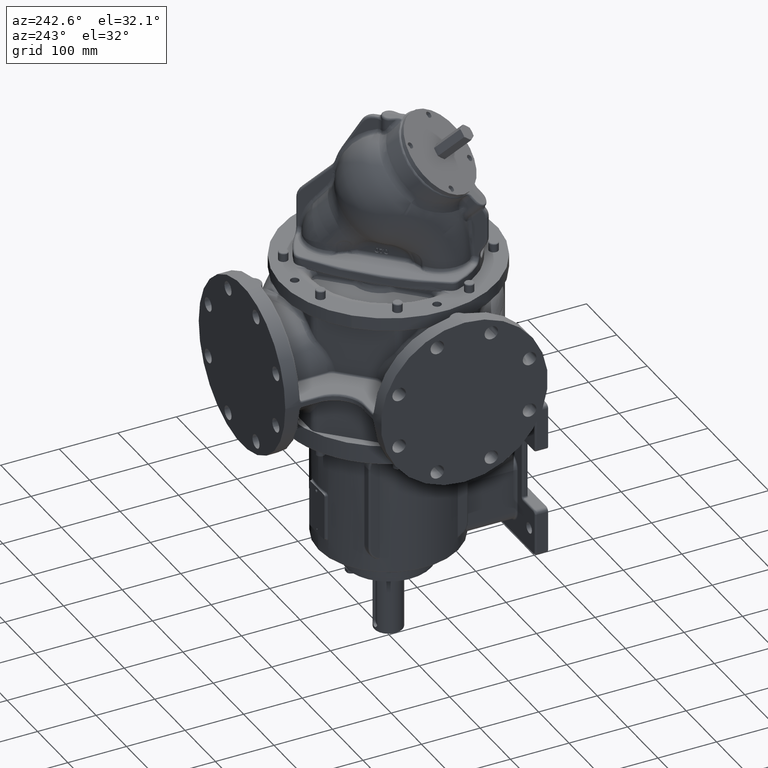
[diagram: clean part render]
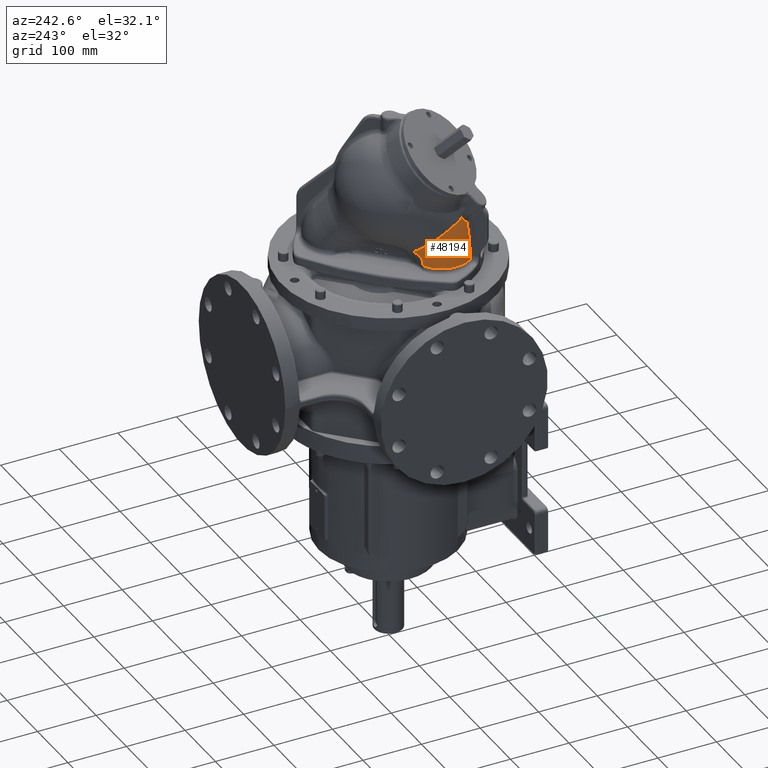
[diagram: same view with one face highlighted and labeled with its STEP entity id]
A machine part, auxiliary view. The second image highlights one B-rep face of the part: STEP entity #48194.
In plain terms, the highlighted face is a freeform B-spline surface patch.
Its self-contained STEP definition (entity closure, byte-faithful):
#1689=CARTESIAN_POINT('',(-1.012318026190E2,-7.183004155908E1,
3.442834503816E2));
#1717=CARTESIAN_POINT('',(-1.015222304593E2,-8.660555446848E1,
2.697498175448E2));
#1718=CARTESIAN_POINT('',(-1.015233806309E2,-8.660685431805E1,
2.696928917581E2));
#1719=CARTESIAN_POINT('',(-1.015269228795E2,-8.660756516825E1,
2.695792146324E2));
#1720=CARTESIAN_POINT('',(-1.015359555342E2,-8.660298110114E1,
2.694090274481E2));
#1721=CARTESIAN_POINT('',(-1.015486650913E2,-8.659277043798E1,
2.692397693342E2));
#1722=CARTESIAN_POINT('',(-1.015649868221E2,-8.657699443075E1,
2.690718951623E2));
#1723=CARTESIAN_POINT('',(-1.015848481722E2,-8.655572739334E1,
2.689057642906E2));
#1724=CARTESIAN_POINT('',(-1.016081663523E2,-8.652905677691E1,
2.687417130513E2));
#1725=CARTESIAN_POINT('',(-1.016348473573E2,-8.649708419300E1,
2.685800698417E2));
#1726=CARTESIAN_POINT('',(-1.016647879086E2,-8.645992335531E1,
2.684211457002E2));
#1727=CARTESIAN_POINT('',(-1.016978763495E2,-8.641769906448E1,
2.682652354771E2));
#1728=CARTESIAN_POINT('',(-1.017339938915E2,-8.637054582299E1,
2.681126162921E2));
#1729=CARTESIAN_POINT('',(-1.017730158173E2,-8.631860646280E1,
2.679635470175E2));
#1730=CARTESIAN_POINT('',(-1.018148126894E2,-8.626203075737E1,
2.678182678318E2));
#1731=CARTESIAN_POINT('',(-1.018592515128E2,-8.620097407236E1,
2.676770000843E2));
#1732=CARTESIAN_POINT('',(-1.019061969030E2,-8.613559597377E1,
2.675399464462E2));
#1733=CARTESIAN_POINT('',(-1.019555121548E2,-8.606605894750E1,
2.674072912662E2));
#1734=CARTESIAN_POINT('',(-1.020070602398E2,-8.599252718459E1,
2.672792011468E2));
#1735=CARTESIAN_POINT('',(-1.020607047111E2,-8.591516546422E1,
2.671558257085E2));
#1736=CARTESIAN_POINT('',(-1.021163105047E2,-8.583413814985E1,
2.670372985099E2));
#1737=CARTESIAN_POINT('',(-1.021737446289E2,-8.574960831226E1,
2.669237380908E2));
#1738=CARTESIAN_POINT('',(-1.022328767606E2,-8.566173695455E1,
2.668152491534E2));
#1739=CARTESIAN_POINT('',(-1.022935797172E2,-8.557068239026E1,
2.667119237952E2));
#1740=CARTESIAN_POINT('',(-1.023557298199E2,-8.547659975436E1,
2.666138427908E2));
#1741=CARTESIAN_POINT('',(-1.024192071532E2,-8.537964064752E1,
2.665210768918E2));
#1742=CARTESIAN_POINT('',(-1.024838957209E2,-8.527995291630E1,
2.664336881277E2));
#1743=CARTESIAN_POINT('',(-1.025496835124E2,-8.517768055362E1,
2.663517310739E2));
#1744=CARTESIAN_POINT('',(-1.026164624681E2,-8.507296374617E1,
2.662752540973E2));
#1745=CARTESIAN_POINT('',(-1.026841284009E2,-8.496593898061E1,
2.662043004873E2));
#1746=CARTESIAN_POINT('',(-1.027525807596E2,-8.485673940296E1,
2.661389095984E2));
#1747=CARTESIAN_POINT('',(-1.028217226560E2,-8.474549474355E1,
2.660791176967E2));
#1748=CARTESIAN_POINT('',(-1.028914594666E2,-8.463233357484E1,
2.660249596360E2));
#1749=CARTESIAN_POINT('',(-1.029617014802E2,-8.451737899647E1,
2.659764675973E2));
#1750=CARTESIAN_POINT('',(-1.030323604599E2,-8.440075421452E1,
2.659336740294E2));
#1751=CARTESIAN_POINT('',(-1.031033505852E2,-8.428258098627E1,
2.658966114891E2));
#1752=CARTESIAN_POINT('',(-1.031745837917E2,-8.416298763099E1,
2.658653140204E2));
#1753=CARTESIAN_POINT('',(-1.032459848876E2,-8.404208329051E1,
2.658398129313E2));
#1754=CARTESIAN_POINT('',(-1.033174490025E2,-8.392003085270E1,
2.658201475402E2));
#1755=CARTESIAN_POINT('',(-1.033889456304E2,-8.379686804606E1,
2.658063436499E2));
#1756=CARTESIAN_POINT('',(-1.034365031210E2,-8.371423371266E1,
2.658010831222E2));
#1757=CARTESIAN_POINT('',(-1.034602652519E2,-8.367276613545E1,
2.657994404985E2));
#1759=CARTESIAN_POINT('',(-8.425802382383E1,-1.419226964745E1,
2.653269937613E2));
#1760=CARTESIAN_POINT('',(-8.458537002486E1,-1.438159483269E1,
2.653141032168E2));
#1761=CARTESIAN_POINT('',(-8.523519204466E1,-1.476668841063E1,
2.652889277357E2));
#1762=CARTESIAN_POINT('',(-8.619504685564E1,-1.536337923518E1,
2.652529390616E2));
#1763=CARTESIAN_POINT('',(-8.713975147798E1,-1.597884827691E1,
2.652186826792E2));
#1764=CARTESIAN_POINT('',(-8.806809813168E1,-1.661215871435E1,
2.651861506362E2));
#1765=CARTESIAN_POINT('',(-8.898057179203E1,-1.726351148708E1,
2.651552718552E2));
#1766=CARTESIAN_POINT('',(-8.987855491907E1,-1.793381694353E1,
2.651259746966E2));
#1767=CARTESIAN_POINT('',(-9.076126129118E1,-1.862246607106E1,
2.650982366414E2));
#1768=CARTESIAN_POINT('',(-9.162806680238E1,-1.932892206893E1,
2.650720396774E2));
#1769=CARTESIAN_POINT('',(-9.247863571834E1,-2.005285196093E1,
2.650473568882E2));
#1770=CARTESIAN_POINT('',(-9.331215507556E1,-2.079348740844E1,
2.650241704040E2));
#1771=CARTESIAN_POINT('',(-9.412824666578E1,-2.155040496956E1,
2.650024549517E2));
#1772=CARTESIAN_POINT('',(-9.492645019135E1,-2.232308142027E1,2.649821883E2));
#1773=CARTESIAN_POINT('',(-9.570606424676E1,-2.311070085544E1,
2.649633490530E2));
#1774=CARTESIAN_POINT('',(-9.646760856191E1,-2.391370529293E1,
2.649458966954E2));
#1775=CARTESIAN_POINT('',(-9.721179296636E1,-2.473278334260E1,
2.649297980676E2));
#1776=CARTESIAN_POINT('',(-9.793799451249E1,-2.556725298770E1,
2.649150328303E2));
#1777=CARTESIAN_POINT('',(-9.864569004361E1,-2.641648137998E1,
2.649015867425E2));
#1778=CARTESIAN_POINT('',(-9.933461616919E1,-2.728010848861E1,
2.648894410596E2));
#1779=CARTESIAN_POINT('',(-1.000041313676E2,-2.815727805947E1,
2.648785790780E2));
#1780=CARTESIAN_POINT('',(-1.006538738994E2,-2.904743839057E1,
2.648689848589E2));
#1781=CARTESIAN_POINT('',(-1.012835601127E2,-2.995011946208E1,
2.648606422559E2));
#1782=CARTESIAN_POINT('',(-1.018924740078E2,-3.086415456302E1,
2.648535333721E2));
#1783=CARTESIAN_POINT('',(-1.024812151757E2,-3.179036096054E1,
2.648476404786E2));
#1784=CARTESIAN_POINT('',(-1.030503668012E2,-3.272964113120E1,
2.648429486446E2));
#1785=CARTESIAN_POINT('',(-1.035991916825E2,-3.368082611384E1,
2.648394439948E2));
#1786=CARTESIAN_POINT('',(-1.041273921988E2,-3.464338603360E1,
2.648371135287E2));
#1787=CARTESIAN_POINT('',(-1.046346498284E2,-3.561671880712E1,
2.648359444515E2));
#1788=CARTESIAN_POINT('',(-1.051204962138E2,-3.659987419562E1,
2.648359188629E2));
#1789=CARTESIAN_POINT('',(-1.055846875504E2,-3.759228455888E1,
2.648370229107E2));
#1790=CARTESIAN_POINT('',(-1.060269946142E2,-3.859337299097E1,
2.648392428354E2));
#1791=CARTESIAN_POINT('',(-1.064469860585E2,-3.960200663800E1,
2.648425566193E2));
#1792=CARTESIAN_POINT('',(-1.068449874498E2,-4.061889373551E1,
2.648469612281E2));
#1793=CARTESIAN_POINT('',(-1.072213654726E2,-4.164493806876E1,
2.648524572459E2));
#1794=CARTESIAN_POINT('',(-1.075757170759E2,-4.267914186378E1,
2.648590260611E2));
#1795=CARTESIAN_POINT('',(-1.079077610561E2,-4.372070077189E1,
2.648666535502E2));
#1796=CARTESIAN_POINT('',(-1.082173417030E2,-4.476912206965E1,
2.648753271250E2));
#1797=CARTESIAN_POINT('',(-1.085041092814E2,-4.582317114145E1,
2.648850233797E2));
#1798=CARTESIAN_POINT('',(-1.087679410524E2,-4.688228229222E1,
2.648957274451E2));
#1799=CARTESIAN_POINT('',(-1.090087063545E2,-4.794580344707E1,
2.649074233083E2));
#1800=CARTESIAN_POINT('',(-1.092261761333E2,-4.901242341007E1,
2.649200832301E2));
#1801=CARTESIAN_POINT('',(-1.094205711905E2,-5.008310687396E1,
2.649337120434E2));
#1802=CARTESIAN_POINT('',(-1.095920971299E2,-5.115901799571E1,
2.649483267933E2));
#1803=CARTESIAN_POINT('',(-1.097404952464E2,-5.223880473257E1,
2.649639000812E2));
#1804=CARTESIAN_POINT('',(-1.098656563958E2,-5.332174496753E1,
2.649804163376E2));
#1805=CARTESIAN_POINT('',(-1.099675061062E2,-5.440724340371E1,
2.649978610100E2));
#1806=CARTESIAN_POINT('',(-1.100459418942E2,-5.549413993395E1,
2.650162069308E2));
#1807=CARTESIAN_POINT('',(-1.101009304142E2,-5.658164465157E1,
2.650354338807E2));
#1808=CARTESIAN_POINT('',(-1.101324704493E2,-5.766928383236E1,
2.650555266718E2));
#1809=CARTESIAN_POINT('',(-1.101405781263E2,-5.875524607165E1,
2.650764428840E2));
#1810=CARTESIAN_POINT('',(-1.101253021484E2,-5.984058360445E1,
2.650981944523E2));
#1811=CARTESIAN_POINT('',(-1.100866036628E2,-6.092705086167E1,
2.651208185169E2));
#1812=CARTESIAN_POINT('',(-1.100244720171E2,-6.201322436020E1,
2.651442826838E2));
#1813=CARTESIAN_POINT('',(-1.099389384489E2,-6.309818905416E1,
2.651685649293E2));
#1814=CARTESIAN_POINT('',(-1.098300385238E2,-6.418134771189E1,
2.651936491008E2));
#1815=CARTESIAN_POINT('',(-1.096978948119E2,-6.526151682623E1,
2.652195039500E2));
#1816=CARTESIAN_POINT('',(-1.095426166710E2,-6.633792987012E1,
2.652461066986E2));
#1817=CARTESIAN_POINT('',(-1.093643098171E2,-6.741000841675E1,
2.652734382138E2));
#1818=CARTESIAN_POINT('',(-1.091632447178E2,-6.847644689364E1,
2.653014604755E2));
#1819=CARTESIAN_POINT('',(-1.089393785227E2,-6.953759939413E1,
2.653301762808E2));
#1820=CARTESIAN_POINT('',(-1.086923903083E2,-7.059502267640E1,
2.653596234545E2));
#1821=CARTESIAN_POINT('',(-1.084223768066E2,-7.164804940155E1,
2.653897873209E2));
#1822=CARTESIAN_POINT('',(-1.081296392472E2,-7.269537437794E1,
2.654206307518E2));
#1823=CARTESIAN_POINT('',(-1.078142315499E2,-7.373674912591E1,
2.654521457341E2));
#1824=CARTESIAN_POINT('',(-1.074765365281E2,-7.477087411706E1,
2.654842943034E2));
#1825=CARTESIAN_POINT('',(-1.071168687235E2,-7.579684651369E1,
2.655170463563E2));
#1826=CARTESIAN_POINT('',(-1.067353321657E2,-7.681441036511E1,
2.655503911758E2));
#1827=CARTESIAN_POINT('',(-1.063326033981E2,-7.782190918816E1,
2.655842730280E2));
#1828=CARTESIAN_POINT('',(-1.059084945175E2,-7.881990471072E1,
2.656187074020E2));
#1829=CARTESIAN_POINT('',(-1.054622723610E2,-7.981007771733E1,
2.656537414407E2));
#1830=CARTESIAN_POINT('',(-1.049943304163E2,-8.079141770292E1,
2.656893495175E2));
#1831=CARTESIAN_POINT('',(-1.045050854508E2,-8.176298169558E1,
2.657254999540E2));
#1832=CARTESIAN_POINT('',(-1.039946214942E2,-8.272453392097E1,
2.657621858893E2));
#1833=CARTESIAN_POINT('',(-1.036406602894E2,-8.335795669382E1,
2.657869678676E2));
#1834=CARTESIAN_POINT('',(-1.034602652519E2,-8.367276613545E1,
2.657994404985E2));
#1836=CARTESIAN_POINT('',(-8.426388467905E1,-1.419072289559E1,
2.653592087690E2));
#1837=CARTESIAN_POINT('',(-8.426322858379E1,-1.419089714992E1,
2.653555987245E2));
#1838=CARTESIAN_POINT('',(-8.426191626836E1,-1.419124202700E1,
2.653483995602E2));
#1839=CARTESIAN_POINT('',(-8.425996688247E1,-1.419176019184E1,
2.653376609737E2));
#1840=CARTESIAN_POINT('',(-8.425867315846E1,-1.419210191220E1,
2.653305423209E2));
#1841=CARTESIAN_POINT('',(-8.425802382383E1,-1.419226964745E1,
2.653269937613E2));
#1843=CARTESIAN_POINT('',(-8.528419154902E1,-1.387950538986E1,
2.704860223089E2));
#1844=CARTESIAN_POINT('',(-8.515390726469E1,-1.392462621335E1,
2.698767300017E2));
#1845=CARTESIAN_POINT('',(-8.490456617063E1,-1.400677170820E1,
2.686849038655E2));
#1846=CARTESIAN_POINT('',(-8.456374855204E1,-1.410920436740E1,
2.669724971189E2));
#1847=CARTESIAN_POINT('',(-8.436008889402E1,-1.416525607166E1,
2.658880030058E2));
#1848=CARTESIAN_POINT('',(-8.426388467905E1,-1.419072289559E1,
2.653592087690E2));
#1850=CARTESIAN_POINT('',(-7.569134893607E1,-6.640504821514E-1,
2.888220847332E2));
#1851=CARTESIAN_POINT('',(-7.579468141780E1,-7.349059469945E-1,
2.888193079204E2));
#1852=CARTESIAN_POINT('',(-7.600409881062E1,-8.812011721856E-1,
2.888105174029E2));
#1853=CARTESIAN_POINT('',(-7.633104211097E1,-1.117672461953E0,
2.887859694602E2));
#1854=CARTESIAN_POINT('',(-7.665617614501E1,-1.360667277532E0,
2.887512547258E2));
#1855=CARTESIAN_POINT('',(-7.697601751436E1,-1.607729296907E0,
2.887059581266E2));
#1856=CARTESIAN_POINT('',(-7.729462581225E1,-1.861509385831E0,
2.886498106626E2));
#1857=CARTESIAN_POINT('',(-7.761251551368E1,-2.122518024811E0,
2.885821304804E2));
#1858=CARTESIAN_POINT('',(-7.792640677981E1,-2.387876624584E0,
2.885034425318E2));
#1859=CARTESIAN_POINT('',(-7.823861530369E1,-2.659383666841E0,
2.884129455164E2));
#1860=CARTESIAN_POINT('',(-7.854787271993E1,-2.935828972526E0,
2.883106944143E2));
#1861=CARTESIAN_POINT('',(-7.885419013816E1,-3.217055487429E0,
2.881964566468E2));
#1862=CARTESIAN_POINT('',(-7.915688344032E1,-3.502280562511E0,
2.880702363864E2));
#1863=CARTESIAN_POINT('',(-7.945589275187E1,-3.791269434644E0,
2.879318459604E2));
#1864=CARTESIAN_POINT('',(-7.975087072739E1,-4.083513602959E0,
2.877812231682E2));
#1865=CARTESIAN_POINT('',(-8.004148420403E1,-4.378496268302E0,
2.876183445059E2));
#1866=CARTESIAN_POINT('',(-8.032773683574E1,-4.676044362894E0,
2.874430001709E2));
#1867=CARTESIAN_POINT('',(-8.060943397153E1,-4.975770279080E0,
2.872551111570E2));
#1868=CARTESIAN_POINT('',(-8.088599459204E1,-5.276867185435E0,
2.870548817447E2));
#1869=CARTESIAN_POINT('',(-8.115737900147E1,-5.579104054501E0,
2.868421669120E2));
#1870=CARTESIAN_POINT('',(-8.142293627820E1,-5.881555713197E0,
2.866173374660E2));
#1871=CARTESIAN_POINT('',(-8.168197938381E1,-6.183234269684E0,
2.863808883082E2));
#1872=CARTESIAN_POINT('',(-8.193500794501E1,-6.484516861622E0,
2.861322763229E2));
#1873=CARTESIAN_POINT('',(-8.218182399524E1,-6.784975878826E0,
2.858715741217E2));
#1874=CARTESIAN_POINT('',(-8.242201809878E1,-7.083929958710E0,
2.855990996655E2));
#1875=CARTESIAN_POINT('',(-8.265541951652E1,-7.380972789851E0,
2.853149801657E2));
#1876=CARTESIAN_POINT('',(-8.288177487359E1,-7.675608219978E0,
2.850194363892E2));
#1877=CARTESIAN_POINT('',(-8.310082430943E1,-7.967317815061E0,
2.847127640923E2));
#1878=CARTESIAN_POINT('',(-8.331248867809E1,-8.255832143816E0,
2.843950178721E2));
#1879=CARTESIAN_POINT('',(-8.351651938306E1,-8.540653578039E0,
2.840665194074E2));
#1880=CARTESIAN_POINT('',(-8.371271998400E1,-8.821347678193E0,
2.837275615559E2));
#1881=CARTESIAN_POINT('',(-8.390083578397E1,-9.097404408532E0,
2.833785625192E2));
#1882=CARTESIAN_POINT('',(-8.408073982625E1,-9.368494983652E0,
2.830197599228E2));
#1883=CARTESIAN_POINT('',(-8.425225316512E1,-9.634218770303E0,
2.826515129212E2));
#1884=CARTESIAN_POINT('',(-8.441520356736E1,-9.894190867557E0,
2.822741973159E2));
#1885=CARTESIAN_POINT('',(-8.456947289761E1,-1.014810930519E1,
2.818881123072E2));
#1886=CARTESIAN_POINT('',(-8.471490333302E1,-1.039561824787E1,
2.814936655621E2));
#1887=CARTESIAN_POINT('',(-8.485134969496E1,-1.063638216588E1,
2.810912824752E2));
#1888=CARTESIAN_POINT('',(-8.497871160175E1,-1.087014839973E1,
2.806812884784E2));
#1889=CARTESIAN_POINT('',(-8.509684216993E1,-1.109658380340E1,
2.802641907940E2));
#1890=CARTESIAN_POINT('',(-8.520566605120E1,-1.131549616375E1,
2.798402818469E2));
#1891=CARTESIAN_POINT('',(-8.530508099571E1,-1.152663798576E1,
2.794099936156E2));
#1892=CARTESIAN_POINT('',(-8.539497142994E1,-1.172974257933E1,
2.789738418433E2));
#1893=CARTESIAN_POINT('',(-8.547525225286E1,-1.192460212238E1,
2.785322799055E2));
#1894=CARTESIAN_POINT('',(-8.554584692478E1,-1.211103484991E1,
2.780857470147E2));
#1895=CARTESIAN_POINT('',(-8.560668125765E1,-1.228886486748E1,
2.776347200444E2));
#1896=CARTESIAN_POINT('',(-8.565769426719E1,-1.245794893122E1,
2.771796507763E2));
#1897=CARTESIAN_POINT('',(-8.569882510349E1,-1.261814621588E1,
2.767210353967E2));
#1898=CARTESIAN_POINT('',(-8.573002581687E1,-1.276933890331E1,
2.762593810589E2));
#1899=CARTESIAN_POINT('',(-8.575125657676E1,-1.291147397204E1,
2.757950278003E2));
#1900=CARTESIAN_POINT('',(-8.576247611212E1,-1.304433535565E1,
2.753289856778E2));
#1901=CARTESIAN_POINT('',(-8.576366986369E1,-1.316823191353E1,
2.748604050798E2));
#1902=CARTESIAN_POINT('',(-8.575479775079E1,-1.328243541620E1,
2.743923551511E2));
#1903=CARTESIAN_POINT('',(-8.573622967888E1,-1.338588431406E1,
2.739307004686E2));
#1904=CARTESIAN_POINT('',(-8.570855383068E1,-1.347872538618E1,
2.734774708716E2));
#1905=CARTESIAN_POINT('',(-8.567209576809E1,-1.356185975738E1,
2.730308725509E2));
#1906=CARTESIAN_POINT('',(-8.562723032181E1,-1.363568621945E1,
2.725911978069E2));
#1907=CARTESIAN_POINT('',(-8.557424133803E1,-1.370071182154E1,
2.721580026979E2));
#1908=CARTESIAN_POINT('',(-8.551337771216E1,-1.375735652237E1,
2.717310502352E2));
#1909=CARTESIAN_POINT('',(-8.544484115533E1,-1.380600868499E1,
2.713100612834E2));
#1910=CARTESIAN_POINT('',(-8.536880771605E1,-1.384701170462E1,
2.708948409183E2));
#1911=CARTESIAN_POINT('',(-8.531319340729E1,-1.386946080081E1,
2.706216558341E2));
#1912=CARTESIAN_POINT('',(-8.528419154902E1,-1.387950538986E1,
2.704860223089E2));
#1914=CARTESIAN_POINT('',(-7.569134893607E1,-6.640504821514E-1,
2.888220847332E2));
#1915=CARTESIAN_POINT('',(-7.612800089917E1,-7.455495001001E-1,
2.891082856943E2));
#1916=CARTESIAN_POINT('',(-7.820873899051E1,-1.163369858686E0,
2.904911535342E2));
#1917=CARTESIAN_POINT('',(-8.102655530300E1,-1.929116306847E0,
2.924932653279E2));
#1918=CARTESIAN_POINT('',(-8.408572530087E1,-3.036780663543E0,
2.948420236451E2));
#1919=CARTESIAN_POINT('',(-8.630718136403E1,-3.985498781192E0,
2.966381301125E2));
#1920=CARTESIAN_POINT('',(-8.845093611484E1,-5.050331585006E0,
2.984640696687E2));
#1921=CARTESIAN_POINT('',(-9.051246354524E1,-6.228839071247E0,
3.003152071249E2));
#1922=CARTESIAN_POINT('',(-9.248730647221E1,-7.518826193629E0,
3.021866749758E2));
#1923=CARTESIAN_POINT('',(-9.437133489792E1,-8.917627207866E0,
3.040735146733E2));
#1924=CARTESIAN_POINT('',(-9.616033326146E1,-1.042235046882E1,
3.059709869918E2));
#1925=CARTESIAN_POINT('',(-9.785051777220E1,-1.202983421387E1,
3.078741076639E2));
#1926=CARTESIAN_POINT('',(-9.943803866994E1,-1.373672958200E1,
3.097780590370E2));
#1927=CARTESIAN_POINT('',(-1.009195068651E2,-1.553944046717E1,
3.116777915431E2));
#1928=CARTESIAN_POINT('',(-1.022914450077E2,-1.743401985591E1,
3.135685926818E2));
#1929=CARTESIAN_POINT('',(-1.035508686763E2,-1.941626227916E1,
3.154456026770E2));
#1930=CARTESIAN_POINT('',(-1.046947541516E2,-2.148175500886E1,
3.173041525638E2));
#1931=CARTESIAN_POINT('',(-1.057205732023E2,-2.362569948695E1,
3.191396535838E2));
#1932=CARTESIAN_POINT('',(-1.066258136475E2,-2.584333671663E1,
3.209474214024E2));
#1933=CARTESIAN_POINT('',(-1.076693462887E2,-2.889143916539E1,
3.233149489767E2));
#1934=CARTESIAN_POINT('',(-1.086622856642E2,-3.285950278061E1,
3.261830597431E2));
#1935=CARTESIAN_POINT('',(-1.093439251198E2,-3.782907950432E1,
3.294449735808E2));
#1936=CARTESIAN_POINT('',(-1.095088542744E2,-4.295915717636E1,
3.324955082115E2));
#1937=CARTESIAN_POINT('',(-1.091551236576E2,-4.820042007724E1,
3.353054214630E2));
#1938=CARTESIAN_POINT('',(-1.082857609230E2,-5.350222046018E1,
3.378479462455E2));
#1939=CARTESIAN_POINT('',(-1.069087666179E2,-5.881306701496E1,
3.400993761982E2));
#1940=CARTESIAN_POINT('',(-1.050371451892E2,-6.408127026218E1,
3.420386788622E2));
#1941=CARTESIAN_POINT('',(-1.030696386463E2,-6.841629331656E1,
3.433873525926E2));
#1942=CARTESIAN_POINT('',(-1.017117178107E2,-7.097093974581E1,
3.440679307989E2));
#1943=CARTESIAN_POINT('',(-1.012318026190E2,-7.183004155908E1,
3.442834503816E2));
#1945=CARTESIAN_POINT('',(-9.754244052221E1,-8.235152178490E1,
3.318061169195E2));
#1946=CARTESIAN_POINT('',(-9.761775116255E1,-8.222273398491E1,
3.318876729460E2));
#1947=CARTESIAN_POINT('',(-9.776638436595E1,-8.196495461454E1,
3.320547326628E2));
#1948=CARTESIAN_POINT('',(-9.798335628335E1,-8.157774018264E1,
3.323173431317E2));
#1949=CARTESIAN_POINT('',(-9.819432559087E1,-8.119005274534E1,
3.325921727681E2));
#1950=CARTESIAN_POINT('',(-9.839918758787E1,-8.080214793158E1,
3.328792227108E2));
#1951=CARTESIAN_POINT('',(-9.859766808395E1,-8.041459567784E1,
3.331783419773E2));
#1952=CARTESIAN_POINT('',(-9.878953716434E1,-8.002794066352E1,
3.334893357975E2));
#1953=CARTESIAN_POINT('',(-9.897492914066E1,-7.964199609655E1,
3.338126082045E2));
#1954=CARTESIAN_POINT('',(-9.915372955759E1,-7.925706403024E1,
3.341481872361E2));
#1955=CARTESIAN_POINT('',(-9.932586849564E1,-7.887336398703E1,
3.344961698960E2));
#1956=CARTESIAN_POINT('',(-9.949128003746E1,-7.849110247147E1,
3.348566792758E2));
#1957=CARTESIAN_POINT('',(-9.964988936411E1,-7.811050758338E1,
3.352298237065E2));
#1958=CARTESIAN_POINT('',(-9.980161842495E1,-7.773181478184E1,
3.356157141138E2));
#1959=CARTESIAN_POINT('',(-9.994640091912E1,-7.735522792163E1,
3.360145029832E2));
#1960=CARTESIAN_POINT('',(-1.000841630275E2,-7.698096127216E1,
3.364263484939E2));
#1961=CARTESIAN_POINT('',(-1.002148188503E2,-7.660925447202E1,
3.368513948706E2));
#1962=CARTESIAN_POINT('',(-1.003382842328E2,-7.624033231161E1,
3.372898199990E2));
#1963=CARTESIAN_POINT('',(-1.004544676006E2,-7.587442693829E1,
3.377418112642E2));
#1964=CARTESIAN_POINT('',(-1.005632391050E2,-7.551188570850E1,
3.382074221175E2));
#1965=CARTESIAN_POINT('',(-1.006644853744E2,-7.515299319002E1,
3.386868029484E2));
#1966=CARTESIAN_POINT('',(-1.007581197191E2,-7.479791878064E1,
3.391802708912E2));
#1967=CARTESIAN_POINT('',(-1.008440087876E2,-7.444696613165E1,
3.396879913802E2));
#1968=CARTESIAN_POINT('',(-1.009220100338E2,-7.410046649702E1,
3.402100958949E2));
#1969=CARTESIAN_POINT('',(-1.009919883496E2,-7.375866893830E1,
3.407468736587E2));
#1970=CARTESIAN_POINT('',(-1.010537467542E2,-7.342212667592E1,
3.412981275719E2));
#1971=CARTESIAN_POINT('',(-1.011071777913E2,-7.309084668631E1,
3.418645918844E2));
#1972=CARTESIAN_POINT('',(-1.011520486512E2,-7.276547099434E1,
3.424459588203E2));
#1973=CARTESIAN_POINT('',(-1.011881624713E2,-7.244658261766E1,
3.430419960525E2));
#1974=CARTESIAN_POINT('',(-1.012153633852E2,-7.213427837457E1,
3.436531171713E2));
#1975=CARTESIAN_POINT('',(-1.012273322967E2,-7.193077249918E1,
3.440715437916E2));
#1976=CARTESIAN_POINT('',(-1.012318026190E2,-7.183004155908E1,
3.442834503816E2));
#1978=CARTESIAN_POINT('',(-9.754244052221E1,-8.235152178490E1,
3.318061169195E2));
#1979=CARTESIAN_POINT('',(-9.770733435751E1,-8.252260508538E1,
3.304206889537E2));
#1980=CARTESIAN_POINT('',(-9.803016215336E1,-8.285828852810E1,
3.276020501957E2));
#1981=CARTESIAN_POINT('',(-9.849116636412E1,-8.333993871035E1,
3.232335184613E2));
#1982=CARTESIAN_POINT('',(-9.892796196371E1,-8.379873286450E1,
3.187154830826E2));
#1983=CARTESIAN_POINT('',(-9.933893865202E1,-8.423289003329E1,
3.140434988357E2));
#1984=CARTESIAN_POINT('',(-9.972309783085E1,-8.464128344960E1,
3.092052268406E2));
#1985=CARTESIAN_POINT('',(-1.000790938306E2,-8.502232090922E1,
3.041906271764E2));
#1986=CARTESIAN_POINT('',(-1.004052001712E2,-8.537392185849E1,
2.989916521602E2));
#1987=CARTESIAN_POINT('',(-1.007000861674E2,-8.569435933386E1,
2.935937708704E2));
#1988=CARTESIAN_POINT('',(-1.009618241587E2,-8.598113245842E1,
2.879873546386E2));
#1989=CARTESIAN_POINT('',(-1.011886832373E2,-8.623186280627E1,
2.821583656961E2));
#1990=CARTESIAN_POINT('',(-1.013786767574E2,-8.644375355747E1,
2.760903454357E2));
#1991=CARTESIAN_POINT('',(-1.014790067185E2,-8.655669968146E1,
2.718891998045E2));
#1992=CARTESIAN_POINT('',(-1.015222304593E2,-8.660555446848E1,
2.697498175448E2));
#2058=CARTESIAN_POINT('',(-8.425802382383E1,-1.419226964745E1,
2.653269937613E2));
#2112=CARTESIAN_POINT('',(-1.034602652519E2,-8.367276613545E1,
2.657994404985E2));
#43075=VERTEX_POINT('',#1689);
#43090=VERTEX_POINT('',#1850);
#43091=VERTEX_POINT('',#1912);
#43699=VERTEX_POINT('',#2058);
#43702=VERTEX_POINT('',#1848);
#43751=VERTEX_POINT('',#2112);
#43752=VERTEX_POINT('',#1717);
#43754=VERTEX_POINT('',#1978);
#47618=CARTESIAN_POINT('',(-1.004819703138E2,-8.830322667455E1,
2.652092772475E2));
#47619=CARTESIAN_POINT('',(-1.008457009881E2,-8.780311461965E1,
2.651988950279E2));
#47620=CARTESIAN_POINT('',(-1.016695400906E2,-8.662566116798E1,
2.651714643484E2));
#47621=CARTESIAN_POINT('',(-1.028836159606E2,-8.472228089175E1,
2.651163891442E2));
#47622=CARTESIAN_POINT('',(-1.041032842034E2,-8.258841406792E1,
2.650417843968E2));
#47623=CARTESIAN_POINT('',(-1.052189084331E2,-8.039611952030E1,
2.649527540182E2));
#47624=CARTESIAN_POINT('',(-1.062278412664E2,-7.814906917709E1,
2.648495411813E2));
#47625=CARTESIAN_POINT('',(-1.071260017708E2,-7.585406719387E1,
2.647324649880E2));
#47626=CARTESIAN_POINT('',(-1.079107984134E2,-7.351859746946E1,
2.646019216470E2));
#47627=CARTESIAN_POINT('',(-1.085808454484E2,-7.114696993489E1,
2.644582690476E2));
#47628=CARTESIAN_POINT('',(-1.091344083467E2,-6.874340617824E1,
2.643018751970E2));
#47629=CARTESIAN_POINT('',(-1.095689638270E2,-6.631542723404E1,
2.641332177816E2));
#47630=CARTESIAN_POINT('',(-1.098835832792E2,-6.387088479948E1,
2.639528376959E2));
#47631=CARTESIAN_POINT('',(-1.100779075566E2,-6.141428618170E1,
2.637612038039E2));
#47632=CARTESIAN_POINT('',(-1.101512240402E2,-5.895014350466E1,
2.635587965074E2));
#47633=CARTESIAN_POINT('',(-1.101026931325E2,-5.648620070235E1,
2.633462222424E2));
#47634=CARTESIAN_POINT('',(-1.099330381178E2,-5.403017861186E1,
2.631241416911E2));
#47635=CARTESIAN_POINT('',(-1.096428957427E2,-5.158653226270E1,
2.628931179152E2));
#47636=CARTESIAN_POINT('',(-1.092325772239E2,-4.915980215785E1,
2.626537237080E2));
#47637=CARTESIAN_POINT('',(-1.087028642426E2,-4.675750391173E1,
2.624066543116E2));
#47638=CARTESIAN_POINT('',(-1.080559625307E2,-4.438682656201E1,
2.621526540398E2));
#47639=CARTESIAN_POINT('',(-1.072934031077E2,-4.205197500913E1,
2.618923570220E2));
#47640=CARTESIAN_POINT('',(-1.064164359258E2,-3.975729318639E1,
2.616264016834E2));
#47641=CARTESIAN_POINT('',(-1.054272801198E2,-3.750975202551E1,
2.613555288516E2));
#47642=CARTESIAN_POINT('',(-1.043293923494E2,-3.531576352015E1,
2.610805228141E2));
#47643=CARTESIAN_POINT('',(-1.031250735948E2,-3.317914306074E1,
2.608020574232E2));
#47644=CARTESIAN_POINT('',(-1.018163873432E2,-3.110387542768E1,
2.605208024818E2));
#47645=CARTESIAN_POINT('',(-1.004067860228E2,-2.909620872883E1,
2.602374996071E2));
#47646=CARTESIAN_POINT('',(-9.890077401866E1,-2.716165679339E1,
2.599529219873E2));
#47647=CARTESIAN_POINT('',(-9.730131042877E1,-2.530354791378E1,
2.596677409613E2));
#47648=CARTESIAN_POINT('',(-9.561114867601E1,-2.352539749446E1,
2.593826143348E2));
#47649=CARTESIAN_POINT('',(-9.383482182995E1,-2.183263991961E1,
2.590982353233E2));
#47650=CARTESIAN_POINT('',(-9.197776717398E1,-2.022983976763E1,
2.588153144597E2));
#47651=CARTESIAN_POINT('',(-9.004352270921E1,-1.871976931616E1,
2.585344945912E2));
#47652=CARTESIAN_POINT('',(-8.803543597734E1,-1.730540990095E1,
2.582564165932E2));
#47653=CARTESIAN_POINT('',(-8.595903214079E1,-1.599132437159E1,
2.579817474216E2));
#47654=CARTESIAN_POINT('',(-8.382057345334E1,-1.478102731563E1,
2.577111391697E2));
#47655=CARTESIAN_POINT('',(-8.162406843190E1,-1.367661991173E1,
2.574452032547E2));
#47656=CARTESIAN_POINT('',(-7.937335292040E1,-1.268044375524E1,
2.571845544178E2));
#47657=CARTESIAN_POINT('',(-7.707486374622E1,-1.179603651813E1,
2.569298157196E2));
#47658=CARTESIAN_POINT('',(-7.480085437099E1,-1.104718841384E1,
2.566884619934E2));
#47659=CARTESIAN_POINT('',(-7.328432369832E1,-1.062573313398E1,
2.565341534232E2));
#47660=CARTESIAN_POINT('',(-7.255461831907E1,-1.044055578626E1,
2.564614193145E2));
#47661=CARTESIAN_POINT('',(-1.004355707723E2,-8.825121410085E1,
2.681834978522E2));
#47662=CARTESIAN_POINT('',(-1.007999475280E2,-8.775097210230E1,
2.681713685910E2));
#47663=CARTESIAN_POINT('',(-1.016254270370E2,-8.657317868802E1,
2.681392268650E2));
#47664=CARTESIAN_POINT('',(-1.028425230001E2,-8.466911426792E1,
2.680743864983E2));
#47665=CARTESIAN_POINT('',(-1.040659344294E2,-8.253432657514E1,
2.679862680234E2));
#47666=CARTESIAN_POINT('',(-1.051856879364E2,-8.034090625746E1,
2.678808810321E2));
#47667=CARTESIAN_POINT('',(-1.061990624342E2,-7.809248949303E1,
2.677585062252E2));
#47668=CARTESIAN_POINT('',(-1.071018632100E2,-7.579592268942E1,
2.676195158025E2));
#47669=CARTESIAN_POINT('',(-1.078914189578E2,-7.345875655270E1,
2.674643927090E2));
#47670=CARTESIAN_POINT('',(-1.085662964277E2,-7.108529491684E1,
2.672935618315E2));
#47671=CARTESIAN_POINT('',(-1.091247051701E2,-6.867975333188E1,
2.671074536915E2));
#47672=CARTESIAN_POINT('',(-1.095640421143E2,-6.624972304300E1,
2.669066296383E2));
#47673=CARTESIAN_POINT('',(-1.098833379187E2,-6.380313593851E1,
2.666917448037E2));
#47674=CARTESIAN_POINT('',(-1.100822118550E2,-6.134450221977E1,
2.664633570359E2));
#47675=CARTESIAN_POINT('',(-1.101599222699E2,-5.887834220400E1,
2.662220328669E2));
#47676=CARTESIAN_POINT('',(-1.101155922968E2,-5.641246236871E1,
2.659684885098E2));
#47677=CARTESIAN_POINT('',(-1.099499381703E2,-5.395464244308E1,
2.657035191662E2));
#47678=CARTESIAN_POINT('',(-1.096635946721E2,-5.150933657870E1,
2.654277955602E2));
#47679=CARTESIAN_POINT('',(-1.092568678036E2,-4.908109266572E1,
2.651419972361E2));
#47680=CARTESIAN_POINT('',(-1.087305311884E2,-4.667745449606E1,
2.648469492906E2));
#47681=CARTESIAN_POINT('',(-1.080867953530E2,-4.430562997861E1,
2.645435426351E2));
#47682=CARTESIAN_POINT('',(-1.073271966509E2,-4.196981460555E1,
2.642325331104E2));
#47683=CARTESIAN_POINT('',(-1.064529920643E2,-3.967435025825E1,
2.639146815327E2));
#47684=CARTESIAN_POINT('',(-1.054663980824E2,-3.742619598817E1,
2.635908718919E2));
#47685=CARTESIAN_POINT('',(-1.043708648548E2,-3.523174670269E1,
2.632620393021E2));
#47686=CARTESIAN_POINT('',(-1.031686952772E2,-3.309480357527E1,
2.629289873538E2));
#47687=CARTESIAN_POINT('',(-1.018619595462E2,-3.101934059671E1,
2.625925171246E2));
#47688=CARTESIAN_POINT('',(-1.004540944742E2,-2.901156858928E1,
2.622535193350E2));
#47689=CARTESIAN_POINT('',(-9.894957626479E1,-2.707696882593E1,
2.619129147153E2));
#47690=CARTESIAN_POINT('',(-9.735135898144E1,-2.521885889025E1,
2.615715047273E2));
#47691=CARTESIAN_POINT('',(-9.566219548711E1,-2.344074188700E1,
2.612300788058E2));
#47692=CARTESIAN_POINT('',(-9.388658856534E1,-2.174801455699E1,
2.608894762490E2));
#47693=CARTESIAN_POINT('',(-9.202993997710E1,-2.014522362922E1,
2.605505463692E2));
#47694=CARTESIAN_POINT('',(-9.009578398740E1,-1.863514791035E1,
2.602140587372E2));
#47695=CARTESIAN_POINT('',(-8.808746381278E1,-1.722077120716E1,
2.598807845408E2));
#47696=CARTESIAN_POINT('',(-8.601047506251E1,-1.590664867547E1,
2.595515352137E2));
#47697=CARTESIAN_POINT('',(-8.387104850032E1,-1.469630257240E1,
2.592270937479E2));
#47698=CARTESIAN_POINT('',(-8.167319030455E1,-1.359185452729E1,
2.589081927519E2));
#47699=CARTESIAN_POINT('',(-7.942072871897E1,-1.259566247298E1,
2.585955714262E2));
#47700=CARTESIAN_POINT('',(-7.712009183470E1,-1.171128721835E1,
2.582899869866E2));
#47701=CARTESIAN_POINT('',(-7.484360512775E1,-1.096254459116E1,
2.580004147232E2));
#47702=CARTESIAN_POINT('',(-7.332520679733E1,-1.054122123165E1,
2.578152499248E2));
#47703=CARTESIAN_POINT('',(-7.259455355949E1,-1.035612447618E1,
2.577279650887E2));
#47704=CARTESIAN_POINT('',(-1.002976738129E2,-8.808335264589E1,
2.751825117259E2));
#47705=CARTESIAN_POINT('',(-1.006641948874E2,-8.758221993321E1,
2.751665731096E2));
#47706=CARTESIAN_POINT('',(-1.014949729351E2,-8.640231009021E1,
2.751240443191E2));
#47707=CARTESIAN_POINT('',(-1.027214059719E2,-8.449472186329E1,
2.750373120348E2));
#47708=CARTESIAN_POINT('',(-1.039560323161E2,-8.235586321563E1,
2.749185601934E2));
#47709=CARTESIAN_POINT('',(-1.050878925075E2,-8.015807712615E1,
2.747758275900E2));
#47710=CARTESIAN_POINT('',(-1.061140984638E2,-7.790492711241E1,
2.746094764576E2));
#47711=CARTESIAN_POINT('',(-1.070302055917E2,-7.560333897507E1,
2.744199997283E2));
#47712=CARTESIAN_POINT('',(-1.078333603269E2,-7.326099276618E1,
2.742080808169E2));
#47713=CARTESIAN_POINT('',(-1.085220150161E2,-7.088218036396E1,
2.739742957076E2));
#47714=CARTESIAN_POINT('',(-1.090942490530E2,-6.847110572839E1,
2.737192148630E2));
#47715=CARTESIAN_POINT('',(-1.095472770591E2,-6.603549681070E1,
2.734435929966E2));
#47716=CARTESIAN_POINT('',(-1.098800260912E2,-6.358344241308E1,
2.731483513821E2));
#47717=CARTESIAN_POINT('',(-1.100920554299E2,-6.111945942512E1,
2.728342505511E2));
#47718=CARTESIAN_POINT('',(-1.101825494293E2,-5.864808523157E1,
2.725020527074E2));
#47719=CARTESIAN_POINT('',(-1.101505353633E2,-5.617724821954E1,
2.721527292697E2));
#47720=CARTESIAN_POINT('',(-1.099966950715E2,-5.371484233920E1,
2.717873900510E2));
#47721=CARTESIAN_POINT('',(-1.097216455233E2,-5.126531998503E1,
2.714069529257E2));
#47722=CARTESIAN_POINT('',(-1.093256690304E2,-4.883324316957E1,
2.710123424367E2));
#47723=CARTESIAN_POINT('',(-1.088095041005E2,-4.642620841751E1,
2.706046864984E2));
#47724=CARTESIAN_POINT('',(-1.081753529416E2,-4.405145712670E1,
2.701852197897E2));
#47725=CARTESIAN_POINT('',(-1.074247513300E2,-4.171316402505E1,
2.697549796786E2));
#47726=CARTESIAN_POINT('',(-1.065589593634E2,-3.941566396221E1,
2.693150102894E2));
#47727=CARTESIAN_POINT('',(-1.055801717652E2,-3.716588781807E1,
2.688665308377E2));
#47728=CARTESIAN_POINT('',(-1.044918104503E2,-3.497019160429E1,
2.684108315337E2));
#47729=CARTESIAN_POINT('',(-1.032961732134E2,-3.283234401938E1,
2.679490186308E2));
#47730=CARTESIAN_POINT('',(-1.019953347230E2,-3.075629225104E1,
2.674821998181E2));
#47731=CARTESIAN_POINT('',(-1.005926870077E2,-2.874816796251E1,
2.670116176829E2));
#47732=CARTESIAN_POINT('',(-9.909263828356E1,-2.681338300250E1,
2.665385431560E2));
#47733=CARTESIAN_POINT('',(-9.749812629151E1,-2.495522787918E1,
2.660640847123E2));
#47734=CARTESIAN_POINT('',(-9.581189612335E1,-2.317717407433E1,
2.655893429337E2));
#47735=CARTESIAN_POINT('',(-9.403838106509E1,-2.148453955075E1,
2.651155068976E2));
#47736=CARTESIAN_POINT('',(-9.218291089564E1,-1.988183808013E1,
2.646437618186E2));
#47737=CARTESIAN_POINT('',(-9.024901311428E1,-1.837186100561E1,
2.641751814117E2));
#47738=CARTESIAN_POINT('',(-8.824002133392E1,-1.695759646457E1,
2.637108493421E2));
#47739=CARTESIAN_POINT('',(-8.616136939751E1,-1.564359030858E1,
2.632519277333E2));
#47740=CARTESIAN_POINT('',(-8.401922588357E1,-1.443338772053E1,
2.627995188731E2));
#47741=CARTESIAN_POINT('',(-8.181759354251E1,-1.332915385684E1,
2.623546475917E2));
#47742=CARTESIAN_POINT('',(-7.956028543949E1,-1.233328224892E1,
2.619183530266E2));
#47743=CARTESIAN_POINT('',(-7.725371396645E1,-1.144939178883E1,
2.614917210275E2));
#47744=CARTESIAN_POINT('',(-7.497040885357E1,-1.070134774232E1,
2.610873098348E2));
#47745=CARTESIAN_POINT('',(-7.344688352361E1,-1.028066135165E1,
2.608286298276E2));
#47746=CARTESIAN_POINT('',(-7.271363154533E1,-1.009591701309E1,
2.607066720067E2));
#47747=CARTESIAN_POINT('',(-9.996567265946E1,-8.763854262025E1,
2.862022681857E2));
#47748=CARTESIAN_POINT('',(-1.003378767222E2,-8.713359305414E1,
2.861808719069E2));
#47749=CARTESIAN_POINT('',(-1.011822813884E2,-8.594488536603E1,
2.861232592517E2));
#47750=CARTESIAN_POINT('',(-1.024314933161E2,-8.402369191751E1,
2.860040974431E2));
#47751=CARTESIAN_POINT('',(-1.036923614614E2,-8.187027802023E1,
2.858393668312E2));
#47752=CARTESIAN_POINT('',(-1.048516853827E2,-7.965813989638E1,
2.856400963268E2));
#47753=CARTESIAN_POINT('',(-1.059063483997E2,-7.739078191245E1,
2.854067499603E2));
#47754=CARTESIAN_POINT('',(-1.068515918189E2,-7.507519256348E1,
2.851399892715E2));
#47755=CARTESIAN_POINT('',(-1.076843088259E2,-7.271916361772E1,
2.848407937563E2));
#47756=CARTESIAN_POINT('',(-1.084027731380E2,-7.032698841214E1,
2.845099516809E2));
#47757=CARTESIAN_POINT('',(-1.090048757721E2,-6.790287366363E1,
2.841482265130E2));
#47758=CARTESIAN_POINT('',(-1.094875784618E2,-6.545466718449E1,
2.837566584341E2));
#47759=CARTESIAN_POINT('',(-1.098496304917E2,-6.299059575866E1,
2.833365716898E2));
#47760=CARTESIAN_POINT('',(-1.100904740537E2,-6.051519575420E1,
2.828890205961E2));
#47761=CARTESIAN_POINT('',(-1.102091675625E2,-5.803303290446E1,
2.824150488519E2));
#47762=CARTESIAN_POINT('',(-1.102045711975E2,-5.555214144839E1,
2.819160136199E2));
#47763=CARTESIAN_POINT('',(-1.100772603265E2,-5.308051016405E1,
2.813935081956E2));
#47764=CARTESIAN_POINT('',(-1.098277861362E2,-5.062259695455E1,
2.808488164296E2));
#47765=CARTESIAN_POINT('',(-1.094563626537E2,-4.818298144881E1,
2.802832248575E2));
#47766=CARTESIAN_POINT('',(-1.089636262725E2,-4.576929658874E1,
2.796983259610E2));
#47767=CARTESIAN_POINT('',(-1.083517052889E2,-4.338879715753E1,
2.790958889264E2));
#47768=CARTESIAN_POINT('',(-1.076220956670E2,-4.104563462030E1,
2.784773759797E2));
#47769=CARTESIAN_POINT('',(-1.067760224588E2,-3.874412891246E1,
2.778442590723E2));
#47770=CARTESIAN_POINT('',(-1.058155986475E2,-3.649116502996E1,
2.771982795277E2));
#47771=CARTESIAN_POINT('',(-1.047441618106E2,-3.429303955504E1,
2.765412874433E2));
#47772=CARTESIAN_POINT('',(-1.035639726264E2,-3.215347475547E1,
2.758748555330E2));
#47773=CARTESIAN_POINT('',(-1.022770769060E2,-3.007637098612E1,
2.752005653595E2));
#47774=CARTESIAN_POINT('',(-1.008867709921E2,-2.806776240940E1,
2.745202196240E2));
#47775=CARTESIAN_POINT('',(-9.939735158893E1,-2.613297207081E1,
2.738356540275E2));
#47776=CARTESIAN_POINT('',(-9.781171495813E1,-2.427523927779E1,
2.731484639623E2));
#47777=CARTESIAN_POINT('',(-9.613256908150E1,-2.249797314482E1,
2.724602460713E2));
#47778=CARTESIAN_POINT('',(-9.436424202957E1,-2.080639891567E1,
2.717727668776E2));
#47779=CARTESIAN_POINT('',(-9.251198502280E1,-1.920500140470E1,
2.710877810174E2));
#47780=CARTESIAN_POINT('',(-9.057931346812E1,-1.769657227999E1,
2.704068664128E2));
#47781=CARTESIAN_POINT('',(-8.856953928920E1,-1.628409181820E1,
2.697316239755E2));
#47782=CARTESIAN_POINT('',(-8.648801687417E1,-1.497211103902E1,
2.690638138470E2));
#47783=CARTESIAN_POINT('',(-8.434084927168E1,-1.376421713861E1,
2.684050889001E2));
#47784=CARTESIAN_POINT('',(-8.213203102312E1,-1.266261772998E1,
2.677569641275E2));
#47785=CARTESIAN_POINT('',(-7.986535055810E1,-1.166974253725E1,
2.671209811780E2));
#47786=CARTESIAN_POINT('',(-7.754720011591E1,-1.078930427996E1,
2.664987981304E2));
#47787=CARTESIAN_POINT('',(-7.525051765836E1,-1.004516387220E1,
2.659088053141E2));
#47788=CARTESIAN_POINT('',(-7.371688660756E1,-9.627429441754E0,
2.655312971981E2));
#47789=CARTESIAN_POINT('',(-7.297850360741E1,-9.444194131850E0,
2.653532913360E2));
#47790=CARTESIAN_POINT('',(-9.944143684611E1,-8.690178746364E1,
2.982532500337E2));
#47791=CARTESIAN_POINT('',(-9.982280555192E1,-8.638922637051E1,
2.982256008742E2));
#47792=CARTESIAN_POINT('',(-1.006888078279E2,-8.518306556187E1,
2.981508822227E2));
#47793=CARTESIAN_POINT('',(-1.019729511883E2,-8.323527360707E1,
2.979954615877E2));
#47794=CARTESIAN_POINT('',(-1.032729163096E2,-8.105389052501E1,
2.977797576777E2));
#47795=CARTESIAN_POINT('',(-1.044722190348E2,-7.881478465344E1,
2.975181101440E2));
#47796=CARTESIAN_POINT('',(-1.055675546920E2,-7.652148486375E1,
2.972110645420E2));
#47797=CARTESIAN_POINT('',(-1.065539439798E2,-7.418099489357E1,
2.968594354663E2));
#47798=CARTESIAN_POINT('',(-1.074280709994E2,-7.180113511513E1,
2.964644961228E2));
#47799=CARTESIAN_POINT('',(-1.081880360851E2,-6.938624332591E1,
2.960272376031E2));
#47800=CARTESIAN_POINT('',(-1.088315638247E2,-6.694057356149E1,
2.955486040861E2));
#47801=CARTESIAN_POINT('',(-1.093554075029E2,-6.447200741816E1,
2.950299182184E2));
#47802=CARTESIAN_POINT('',(-1.097581303577E2,-6.198880429376E1,
2.944729174675E2));
#47803=CARTESIAN_POINT('',(-1.100390374345E2,-5.949554791638E1,
2.938789489062E2));
#47804=CARTESIAN_POINT('',(-1.101970562481E2,-5.699685283213E1,
2.932493339280E2));
#47805=CARTESIAN_POINT('',(-1.102308694446E2,-5.450077890980E1,
2.925858264768E2));
#47806=CARTESIAN_POINT('',(-1.101408964737E2,-5.201532573269E1,
2.918905271107E2));
#47807=CARTESIAN_POINT('',(-1.099275876112E2,-4.954497978533E1,
2.911650934130E2));
#47808=CARTESIAN_POINT('',(-1.095910617302E2,-4.709434749599E1,
2.904111795161E2));
#47809=CARTESIAN_POINT('',(-1.091318083907E2,-4.467105467731E1,
2.896308685374E2));
#47810=CARTESIAN_POINT('',(-1.085518219746E2,-4.228232880105E1,
2.888265017785E2));
#47811=CARTESIAN_POINT('',(-1.078525228381E2,-3.993231634877E1,
2.879999837005E2));
#47812=CARTESIAN_POINT('',(-1.070350645739E2,-3.762532530570E1,
2.871532305538E2));
#47813=CARTESIAN_POINT('',(-1.061014298852E2,-3.536819203708E1,
2.862885482141E2));
#47814=CARTESIAN_POINT('',(-1.050548308596E2,-3.316715016125E1,
2.854083991568E2));
#47815=CARTESIAN_POINT('',(-1.038974637674E2,-3.102588070965E1,
2.845148520574E2));
#47816=CARTESIAN_POINT('',(-1.026313102644E2,-2.894823034395E1,
2.836099929801E2));
#47817=CARTESIAN_POINT('',(-1.012595396140E2,-2.694015528077E1,
2.826962475115E2));
#47818=CARTESIAN_POINT('',(-9.978632633330E1,-2.500689925056E1,
2.817760877744E2));
#47819=CARTESIAN_POINT('',(-9.821450581165E1,-2.315163319288E1,
2.808516437128E2));
#47820=CARTESIAN_POINT('',(-9.654671674417E1,-2.137767907726E1,
2.799250593086E2));
#47821=CARTESIAN_POINT('',(-9.478717283934E1,-1.969018961542E1,
2.789987718851E2));
#47822=CARTESIAN_POINT('',(-9.294106728322E1,-1.809362588186E1,
2.780752142932E2));
#47823=CARTESIAN_POINT('',(-9.101188861642E1,-1.659073856700E1,
2.771565438638E2));
#47824=CARTESIAN_POINT('',(-8.900290621857E1,-1.518446251319E1,
2.762449551214E2));
#47825=CARTESIAN_POINT('',(-8.691938991023E1,-1.387934998034E1,
2.753429228057E2));
#47826=CARTESIAN_POINT('',(-8.476738909471E1,-1.267901295224E1,
2.744527667618E2));
#47827=CARTESIAN_POINT('',(-8.255087084786E1,-1.158565126372E1,
2.735765738091E2));
#47828=CARTESIAN_POINT('',(-8.027358017708E1,-1.060168633942E1,
2.727164716468E2));
#47829=CARTESIAN_POINT('',(-7.794186601391E1,-9.730905006612E0,
2.718748186783E2));
#47830=CARTESIAN_POINT('',(-7.562913802108E1,-8.996963058711E0,
2.710766104886E2));
#47831=CARTESIAN_POINT('',(-7.408317034406E1,-8.586458219833E0,
2.705658423468E2));
#47832=CARTESIAN_POINT('',(-7.333847912162E1,-8.406805189095E0,
2.703249993616E2));
#47833=CARTESIAN_POINT('',(-9.873809903171E1,-8.589078783473E1,
3.102731720130E2));
#47834=CARTESIAN_POINT('',(-9.913166359442E1,-8.536685297527E1,
3.102380443338E2));
#47835=CARTESIAN_POINT('',(-1.000260828288E2,-8.413461967744E1,
3.101434493300E2));
#47836=CARTESIAN_POINT('',(-1.013551450095E2,-8.214716858973E1,
3.099476829250E2));
#47837=CARTESIAN_POINT('',(-1.027043109452E2,-7.992419932760E1,
3.096768555779E2));
#47838=CARTESIAN_POINT('',(-1.039530045884E2,-7.764519876540E1,
3.093489572827E2));
#47839=CARTESIAN_POINT('',(-1.050978144220E2,-7.531382608613E1,
3.089645951303E2));
#47840=CARTESIAN_POINT('',(-1.061336847762E2,-7.293707571495E1,
3.085247073910E2));
#47841=CARTESIAN_POINT('',(-1.070571837615E2,-7.052272821135E1,
3.080308305030E2));
#47842=CARTESIAN_POINT('',(-1.078662810999E2,-6.807522328081E1,
3.074841369213E2));
#47843=CARTESIAN_POINT('',(-1.085585928780E2,-6.559892186363E1,
3.068857304312E2));
#47844=CARTESIAN_POINT('',(-1.091307564200E2,-6.310166881904E1,
3.062371854388E2));
#47845=CARTESIAN_POINT('',(-1.095811844623E2,-6.059166116248E1,
3.055406213191E2));
#47846=CARTESIAN_POINT('',(-1.099090549073E2,-5.807356883627E1,
3.047976567155E2));
#47847=CARTESIAN_POINT('',(-1.101131886350E2,-5.555208721821E1,
3.040098682045E2));
#47848=CARTESIAN_POINT('',(-1.101921209369E2,-5.303523416049E1,
3.031793800493E2));
#47849=CARTESIAN_POINT('',(-1.101461028433E2,-5.053094671362E1,
3.023087739581E2));
#47850=CARTESIAN_POINT('',(-1.099754720982E2,-4.804377426102E1,
3.014000604801E2));
#47851=CARTESIAN_POINT('',(-1.096802486075E2,-4.557837109486E1,
3.004552378926E2));
#47852=CARTESIAN_POINT('',(-1.092607630210E2,-4.314232576491E1,
2.994768627833E2));
#47853=CARTESIAN_POINT('',(-1.087188471646E2,-4.074281096642E1,
2.984678330560E2));
#47854=CARTESIAN_POINT('',(-1.080558296630E2,-3.838399961055E1,
2.974304756765E2));
#47855=CARTESIAN_POINT('',(-1.072727757022E2,-3.607020468455E1,
2.963671285520E2));
#47856=CARTESIAN_POINT('',(-1.063715159122E2,-3.380822528273E1,
2.952806574814E2));
#47857=CARTESIAN_POINT('',(-1.053551229925E2,-3.160424172546E1,
2.941741362645E2));
#47858=CARTESIAN_POINT('',(-1.042257192425E2,-2.946191233286E1,
2.930501136282E2));
#47859=CARTESIAN_POINT('',(-1.029852046519E2,-2.738503747889E1,
2.919111626658E2));
#47860=CARTESIAN_POINT('',(-1.016366111454E2,-2.537952472857E1,
2.907603435528E2));
#47861=CARTESIAN_POINT('',(-1.001840011786E2,-2.345055471341E1,
2.896007833105E2));
#47862=CARTESIAN_POINT('',(-9.863014386977E1,-2.160122198085E1,
2.884351422723E2));
#47863=CARTESIAN_POINT('',(-9.697759132594E1,-1.983474670415E1,
2.872661084324E2));
#47864=CARTESIAN_POINT('',(-9.523044202654E1,-1.815622569035E1,
2.860968296415E2));
#47865=CARTESIAN_POINT('',(-9.339384264239E1,-1.657007933205E1,
2.849304678947E2));
#47866=CARTESIAN_POINT('',(-9.147123685862E1,-1.507896189824E1,
2.837697725436E2));
#47867=CARTESIAN_POINT('',(-8.946583033420E1,-1.368570867070E1,
2.826175432396E2));
#47868=CARTESIAN_POINT('',(-8.738279487770E1,-1.239483313800E1,
2.814770195541E2));
#47869=CARTESIAN_POINT('',(-8.522812374629E1,-1.120991386557E1,
2.803512456465E2));
#47870=CARTESIAN_POINT('',(-8.300573044198E1,-1.013306309510E1,
2.792428999987E2));
#47871=CARTESIAN_POINT('',(-8.071929198195E1,-9.166617584333E0,
2.781547169048E2));
#47872=CARTESIAN_POINT('',(-7.837506677598E1,-8.314363643879E0,
2.770898194516E2));
#47873=CARTESIAN_POINT('',(-7.604687161724E1,-7.599425010259E0,
2.760799782374E2));
#47874=CARTESIAN_POINT('',(-7.448864176314E1,-7.202003350101E0,
2.754338824886E2));
#47875=CARTESIAN_POINT('',(-7.373760397597E1,-7.028737951768E0,
2.751292588252E2));
#47876=CARTESIAN_POINT('',(-9.798459698931E1,-8.479693272585E1,
3.202535985088E2));
#47877=CARTESIAN_POINT('',(-9.839097982570E1,-8.426018360203E1,
3.202104454677E2));
#47878=CARTESIAN_POINT('',(-9.931501002561E1,-8.299854133271E1,
3.200951908573E2));
#47879=CARTESIAN_POINT('',(-1.006900312269E2,-8.096626964188E1,
3.198596181978E2));
#47880=CARTESIAN_POINT('',(-1.020886261026E2,-7.869622301053E1,
3.195364151313E2));
#47881=CARTESIAN_POINT('',(-1.033861344613E2,-7.637203244649E1,
3.191471552327E2));
#47882=CARTESIAN_POINT('',(-1.045791383595E2,-7.399756453277E1,
3.186924946503E2));
#47883=CARTESIAN_POINT('',(-1.056626523808E2,-7.157981109495E1,
3.181734589657E2));
#47884=CARTESIAN_POINT('',(-1.066332434308E2,-6.912648555418E1,
3.175917850107E2));
#47885=CARTESIAN_POINT('',(-1.074888251083E2,-6.664216955670E1,
3.169487908363E2));
#47886=CARTESIAN_POINT('',(-1.082269857900E2,-6.413137214896E1,
3.162457092152E2));
#47887=CARTESIAN_POINT('',(-1.088443605094E2,-6.160187258243E1,
3.154843045005E2));
#47888=CARTESIAN_POINT('',(-1.093392864695E2,-5.906175874289E1,
3.146669910159E2));
#47889=CARTESIAN_POINT('',(-1.097108590868E2,-5.651581256407E1,
3.137956075184E2));
#47890=CARTESIAN_POINT('',(-1.099578435024E2,-5.396883224881E1,
3.128719363765E2));
#47891=CARTESIAN_POINT('',(-1.100786952639E2,-5.142876418689E1,
3.118983931409E2));
#47892=CARTESIAN_POINT('',(-1.100735347813E2,-4.890345158324E1,
3.108779401573E2));
#47893=CARTESIAN_POINT('',(-1.099426087809E2,-4.639753289810E1,
3.098128747150E2));
#47894=CARTESIAN_POINT('',(-1.096858626073E2,-4.391572973935E1,
3.087054716390E2));
#47895=CARTESIAN_POINT('',(-1.093035002969E2,-4.146559039651E1,
3.075586736036E2));
#47896=CARTESIAN_POINT('',(-1.087972122941E2,-3.905423545720E1,
3.063758320090E2));
#47897=CARTESIAN_POINT('',(-1.081682480263E2,-3.668589639837E1,
3.051596167614E2));
#47898=CARTESIAN_POINT('',(-1.074175955590E2,-3.436491726189E1,
3.039127041167E2));
#47899=CARTESIAN_POINT('',(-1.065469539226E2,-3.209808784046E1,
3.026384296702E2));
#47900=CARTESIAN_POINT('',(-1.055592833040E2,-2.989156492758E1,
3.013403799300E2));
#47901=CARTESIAN_POINT('',(-1.044566477274E2,-2.774901640354E1,
3.000214933967E2));
#47902=CARTESIAN_POINT('',(-1.032408775246E2,-2.567422550222E1,
2.986847354046E2));
#47903=CARTESIAN_POINT('',(-1.019148930351E2,-2.367309057860E1,
2.973337098708E2));
#47904=CARTESIAN_POINT('',(-1.004826839818E2,-2.175075935225E1,
2.959721079304E2));
#47905=CARTESIAN_POINT('',(-9.894697314678E1,-1.991026789219E1,
2.946030248017E2));
#47906=CARTESIAN_POINT('',(-9.731024389109E1,-1.815475362591E1,
2.932295931575E2));
#47907=CARTESIAN_POINT('',(-9.557650112458E1,-1.648927086836E1,
2.918555836681E2));
#47908=CARTESIAN_POINT('',(-9.375084909736E1,-1.491816900044E1,
2.904847964217E2));
#47909=CARTESIAN_POINT('',(-9.183668302936E1,-1.344397147735E1,
2.891204643601E2));
#47910=CARTESIAN_POINT('',(-8.983714405975E1,-1.206937755043E1,
2.877658784505E2));
#47911=CARTESIAN_POINT('',(-8.775730574859E1,-1.079880586419E1,
2.864249364823E2));
#47912=CARTESIAN_POINT('',(-8.560310197387E1,-9.635725350315E0,
2.851013147546E2));
#47913=CARTESIAN_POINT('',(-8.337838330254E1,-8.582090107715E0,
2.837981751007E2));
#47914=CARTESIAN_POINT('',(-8.108675357092E1,-7.640080917754E0,
2.825187470492E2));
#47915=CARTESIAN_POINT('',(-7.873434340584E1,-6.813376538001E0,
2.812668164256E2));
#47916=CARTESIAN_POINT('',(-7.639519093693E1,-6.124261912797E0,
2.800798583719E2));
#47917=CARTESIAN_POINT('',(-7.482783061889E1,-5.744349943387E0,
2.793206280588E2));
#47918=CARTESIAN_POINT('',(-7.407197787645E1,-5.579565344004E0,
2.789627124980E2));
#47919=CARTESIAN_POINT('',(-9.735787130864E1,-8.388574030410E1,
3.272158079760E2));
#47920=CARTESIAN_POINT('',(-9.777472199155E1,-8.333821862291E1,
3.271657083039E2));
#47921=CARTESIAN_POINT('',(-9.872280279894E1,-8.205181961387E1,
3.270329360877E2));
#47922=CARTESIAN_POINT('',(-1.001347098930E2,-7.998171694247E1,
3.267648160492E2));
#47923=CARTESIAN_POINT('',(-1.015724814220E2,-7.767182885077E1,
3.263999978466E2));
#47924=CARTESIAN_POINT('',(-1.029082314152E2,-7.530930893622E1,
3.259629853534E2));
#47925=CARTESIAN_POINT('',(-1.041385881522E2,-7.289822447071E1,
3.254544789932E2));
#47926=CARTESIAN_POINT('',(-1.052586904535E2,-7.044558131914E1,
3.248755658926E2));
#47927=CARTESIAN_POINT('',(-1.062651616118E2,-6.795904032012E1,
3.242281205663E2));
#47928=CARTESIAN_POINT('',(-1.071559124753E2,-6.544331500504E1,
3.235135698190E2));
#47929=CARTESIAN_POINT('',(-1.079285523216E2,-6.290305137189E1,
3.227332449243E2));
#47930=CARTESIAN_POINT('',(-1.085797712447E2,-6.034597584059E1,
3.218890395015E2));
#47931=CARTESIAN_POINT('',(-1.091078884290E2,-5.778008130665E1,
3.209835670525E2));
#47932=CARTESIAN_POINT('',(-1.095119614423E2,-5.521025069328E1,
3.200188259741E2));
#47933=CARTESIAN_POINT('',(-1.097907398410E2,-5.264137461942E1,
3.189967481114E2));
#47934=CARTESIAN_POINT('',(-1.099426532680E2,-5.008133926763E1,
3.179199494083E2));
#47935=CARTESIAN_POINT('',(-1.099677441553E2,-4.753791016080E1,
3.167916516726E2));
#47936=CARTESIAN_POINT('',(-1.098662021872E2,-4.501580946712E1,
3.156143567285E2));
#47937=CARTESIAN_POINT('',(-1.096379287631E2,-4.251982346109E1,
3.143905350161E2));
#47938=CARTESIAN_POINT('',(-1.092830479918E2,-4.005747451951E1,
3.131234008963E2));
#47939=CARTESIAN_POINT('',(-1.088031549933E2,-3.763585227927E1,
3.118166220413E2));
#47940=CARTESIAN_POINT('',(-1.081994457968E2,-3.525925327935E1,
3.104731101521E2));
#47941=CARTESIAN_POINT('',(-1.074728559457E2,-3.293206402055E1,
3.090957773761E2));
#47942=CARTESIAN_POINT('',(-1.066249940422E2,-3.066108586415E1,
3.076882967436E2));
#47943=CARTESIAN_POINT('',(-1.056587492014E2,-2.845247854730E1,
3.062546209981E2));
#47944=CARTESIAN_POINT('',(-1.045761507848E2,-2.630994047552E1,
3.047979609543E2));
#47945=CARTESIAN_POINT('',(-1.033789850139E2,-2.423726497129E1,
3.033215533369E2));
#47946=CARTESIAN_POINT('',(-1.020701008366E2,-2.224036661358E1,
3.018293965727E2));
#47947=CARTESIAN_POINT('',(-1.006534546995E2,-2.032438718324E1,
3.003255911586E2));
#47948=CARTESIAN_POINT('',(-9.913174981276E1,-1.849233547133E1,
2.988135339494E2));
#47949=CARTESIAN_POINT('',(-9.750743496382E1,-1.674730585873E1,
2.972966646909E2));
#47950=CARTESIAN_POINT('',(-9.578445543748E1,-1.509432284317E1,
2.957792036808E2));
#47951=CARTESIAN_POINT('',(-9.396787809534E1,-1.353765575136E1,
2.942654017876E2));
#47952=CARTESIAN_POINT('',(-9.206106311833E1,-1.207971381853E1,
2.927588125222E2));
#47953=CARTESIAN_POINT('',(-9.006710685045E1,-1.072307562541E1,
2.912630492588E2));
#47954=CARTESIAN_POINT('',(-8.799100786071E1,-9.472050867618E0,
2.897824638954E2));
#47955=CARTESIAN_POINT('',(-8.583865200281E1,-8.329975650594E0,
2.883211721538E2));
#47956=CARTESIAN_POINT('',(-8.361384382230E1,-7.298646035682E0,
2.868826492549E2));
#47957=CARTESIAN_POINT('',(-8.132013618633E1,-6.380085060725E0,
2.854704448492E2));
#47958=CARTESIAN_POINT('',(-7.896354554372E1,-5.577821992919E0,
2.840887943220E2));
#47959=CARTESIAN_POINT('',(-7.661818714156E1,-4.913289038516E0,
2.827791226862E2));
#47960=CARTESIAN_POINT('',(-7.504535976743E1,-4.549954525696E0,
2.819415798805E2));
#47961=CARTESIAN_POINT('',(-7.428656751754E1,-4.393175450271E0,
2.815467899524E2));
#47962=CARTESIAN_POINT('',(-9.696938589222E1,-8.332125489154E1,
3.311868184677E2));
#47963=CARTESIAN_POINT('',(-9.739266741457E1,-8.276706437920E1,
3.311323148057E2));
#47964=CARTESIAN_POINT('',(-9.835548866500E1,-8.146532900196E1,
3.309885299457E2));
#47965=CARTESIAN_POINT('',(-9.978988308750E1,-7.937175844038E1,
3.307002635351E2));
#47966=CARTESIAN_POINT('',(-1.012514019418E2,-7.703712106525E1,
3.303100158326E2));
#47967=CARTESIAN_POINT('',(-1.026102066074E2,-7.465076188683E1,
3.298441063868E2));
#47968=CARTESIAN_POINT('',(-1.038629672395E2,-7.221687887609E1,
3.293032659625E2));
#47969=CARTESIAN_POINT('',(-1.050049154672E2,-6.974249207722E1,
3.286886189114E2));
#47970=CARTESIAN_POINT('',(-1.060327238589E2,-6.723523223205E1,
3.280021194078E2));
#47971=CARTESIAN_POINT('',(-1.069443133627E2,-6.469989746147E1,
3.272452602873E2));
#47972=CARTESIAN_POINT('',(-1.077373177348E2,-6.214122136171E1,
3.264194334364E2));
#47973=CARTESIAN_POINT('',(-1.084084754775E2,-5.956689943397E1,
3.255266068139E2));
#47974=CARTESIAN_POINT('',(-1.089561063795E2,-5.698486631867E1,
3.245695068984E2));
#47975=CARTESIAN_POINT('',(-1.093792530753E2,-5.440006882251E1,
3.235502265581E2));
#47976=CARTESIAN_POINT('',(-1.096766636704E2,-5.181745595235E1,
3.224707862699E2));
#47977=CARTESIAN_POINT('',(-1.098467623005E2,-4.924487740065E1,
3.213339166819E2));
#47978=CARTESIAN_POINT('',(-1.098895515328E2,-4.669005198682E1,
3.201429867784E2));
#47979=CARTESIAN_POINT('',(-1.098051909212E2,-4.415775568118E1,
3.189006177462E2));
#47980=CARTESIAN_POINT('',(-1.095935594704E2,-4.165281675399E1,
3.176093937289E2));
#47981=CARTESIAN_POINT('',(-1.092547385375E2,-3.918274402500E1,
3.162726858710E2));
#47982=CARTESIAN_POINT('',(-1.087902703665E2,-3.675461205193E1,
3.148943431600E2));
#47983=CARTESIAN_POINT('',(-1.082013212615E2,-3.437276186616E1,
3.134774171909E2));
#47984=CARTESIAN_POINT('',(-1.074887973210E2,-3.204161087516E1,
3.120249557884E2));
#47985=CARTESIAN_POINT('',(-1.066542561575E2,-2.976797291007E1,
3.105408285653E2));
#47986=CARTESIAN_POINT('',(-1.057005488976E2,-2.755801603758E1,
3.090292008399E2));
#47987=CARTESIAN_POINT('',(-1.046296871752E2,-2.541546417369E1,
3.074934400070E2));
#47988=CARTESIAN_POINT('',(-1.034434338184E2,-2.334412431878E1,
3.059369380136E2));
#47989=CARTESIAN_POINT('',(-1.021445993816E2,-2.134992772746E1,
3.043639240019E2));
#47990=CARTESIAN_POINT('',(-1.007371271300E2,-1.943801878917E1,
3.027787377124E2));
#47991=CARTESIAN_POINT('',(-9.922371384252E1,-1.761139651777E1,
3.011849482402E2));
#47992=CARTESIAN_POINT('',(-9.760679399911E1,-1.587313735997E1,
2.995861703351E2));
#47993=CARTESIAN_POINT('',(-9.589028148284E1,-1.422824908988E1,
2.979868848237E2));
#47994=CARTESIAN_POINT('',(-9.407921924372E1,-1.268094590186E1,
2.963915986803E2));
#47995=CARTESIAN_POINT('',(-9.217694801192E1,-1.123356683541E1,
2.948040412723E2));
#47996=CARTESIAN_POINT('',(-9.018653984818E1,-9.888615832434E0,
2.932280015564E2));
#47997=CARTESIAN_POINT('',(-8.811294978831E1,-8.650328256778E0,
2.916680856139E2));
#47998=CARTESIAN_POINT('',(-8.596203533200E1,-7.521947871815E0,
2.901286556841E2));
#47999=CARTESIAN_POINT('',(-8.373757603684E1,-6.505168255572E0,
2.886133553359E2));
#48000=CARTESIAN_POINT('',(-8.144309795562E1,-5.601909838763E0,
2.871259057141E2));
#48001=CARTESIAN_POINT('',(-7.908454728493E1,-4.815594866979E0,
2.856707893550E2));
#48002=CARTESIAN_POINT('',(-7.673606246901E1,-4.167087708914E0,
2.842916614731E2));
#48003=CARTESIAN_POINT('',(-7.516038678195E1,-3.814549615333E0,
2.834098146250E2));
#48004=CARTESIAN_POINT('',(-7.440004621266E1,-3.662981130844E0,
2.829941673770E2));
#48005=CARTESIAN_POINT('',(-9.656002782930E1,-8.272686532465E1,
3.351524016789E2));
#48006=CARTESIAN_POINT('',(-9.699004493212E1,-8.216566486594E1,
3.350931950371E2));
#48007=CARTESIAN_POINT('',(-9.796828285541E1,-8.084780111010E1,
3.349377067764E2));
#48008=CARTESIAN_POINT('',(-9.942611922009E1,-7.872952726613E1,
3.346282246290E2));
#48009=CARTESIAN_POINT('',(-1.009123048518E2,-7.636881263669E1,
3.342114044567E2));
#48010=CARTESIAN_POINT('',(-1.022949744814E2,-7.395731299929E1,
3.337154793106E2));
#48011=CARTESIAN_POINT('',(-1.035708506498E2,-7.149936782025E1,
3.331412140725E2));
#48012=CARTESIAN_POINT('',(-1.047352723323E2,-6.900201604433E1,
3.324897720167E2));
#48013=CARTESIAN_POINT('',(-1.057849728347E2,-6.647285891341E1,
3.317631879339E2));
#48014=CARTESIAN_POINT('',(-1.067178912718E2,-6.391678540223E1,
3.309630237067E2));
#48015=CARTESIAN_POINT('',(-1.075316944640E2,-6.133862301940E1,
3.300907351830E2));
#48016=CARTESIAN_POINT('',(-1.082231807550E2,-5.874603642957E1,
3.291483653072E2));
#48017=CARTESIAN_POINT('',(-1.087906780124E2,-5.614689999059E1,
3.281387532652E2));
#48018=CARTESIAN_POINT('',(-1.092332186627E2,-5.354622858933E1,
3.270640890277E2));
#48019=CARTESIAN_POINT('',(-1.095495545257E2,-5.094903342381E1,
3.259264843308E2));
#48020=CARTESIAN_POINT('',(-1.097381106246E2,-4.836312674269E1,
3.247287850263E2));
#48021=CARTESIAN_POINT('',(-1.097988530378E2,-4.579617964801E1,
3.234745068793E2));
#48022=CARTESIAN_POINT('',(-1.097319130104E2,-4.325302598815E1,
3.221663925975E2));
#48023=CARTESIAN_POINT('',(-1.095371490907E2,-4.073853952494E1,
3.208071418121E2));
#48024=CARTESIAN_POINT('',(-1.092146019898E2,-3.826021663545E1,
3.194002839661E2));
#48025=CARTESIAN_POINT('',(-1.087657623445E2,-3.582511892528E1,
3.179498502307E2));
#48026=CARTESIAN_POINT('',(-1.081917673609E2,-3.343763696498E1,
3.164590338147E2));
#48027=CARTESIAN_POINT('',(-1.074934941565E2,-3.110222372762E1,
3.149310193790E2));
#48028=CARTESIAN_POINT('',(-1.066724499060E2,-2.882570956212E1,
3.133698763213E2));
#48029=CARTESIAN_POINT('',(-1.057314496541E2,-2.661427552005E1,
3.117799854348E2));
#48030=CARTESIAN_POINT('',(-1.046724888087E2,-2.447167666060E1,
3.101648720112E2));
#48031=CARTESIAN_POINT('',(-1.034973081565E2,-2.240173924856E1,
3.085280840028E2));
#48032=CARTESIAN_POINT('',(-1.022086815762E2,-2.041041615187E1,
3.068740856333E2));
#48033=CARTESIAN_POINT('',(-1.008105432236E2,-1.850285838084E1,
3.052074602731E2));
#48034=CARTESIAN_POINT('',(-9.930558685011E1,-1.668205929364E1,
3.035319498668E2));
#48035=CARTESIAN_POINT('',(-9.769623659090E1,-1.495108217320E1,
3.018513446540E2));
#48036=CARTESIAN_POINT('',(-9.598637684130E1,-1.331491793160E1,
3.001703888756E2));
#48037=CARTESIAN_POINT('',(-9.418102454292E1,-1.177771850123E1,
2.984938444963E2));
#48038=CARTESIAN_POINT('',(-9.228350123031E1,-1.034174924707E1,
2.968256119434E2));
#48039=CARTESIAN_POINT('',(-9.029685544760E1,-9.009435496685E0,
2.951696500381E2));
#48040=CARTESIAN_POINT('',(-8.822599808147E1,-7.784929673742E0,
2.935308151942E2));
#48041=CARTESIAN_POINT('',(-8.607675742979E1,-6.671371616579E0,
2.919137126486E2));
#48042=CARTESIAN_POINT('',(-8.385288886540E1,-5.670344237546E0,
2.903221468952E2));
#48043=CARTESIAN_POINT('',(-8.155789312744E1,-4.783657060448E0,
2.887600027063E2));
#48044=CARTESIAN_POINT('',(-7.919764284437E1,-4.014610676570E0,
2.872320022555E2));
#48045=CARTESIAN_POINT('',(-7.684628636223E1,-3.383447646193E0,
2.857840076853E2));
#48046=CARTESIAN_POINT('',(-7.526792941407E1,-3.042587449607E0,
2.848582543503E2));
#48047=CARTESIAN_POINT('',(-7.450612005818E1,-2.896653112693E0,
2.844219411684E2));
#48048=CARTESIAN_POINT('',(-9.597875979922E1,-8.188402919504E1,
3.403605634119E2));
#48049=CARTESIAN_POINT('',(-9.641825895275E1,-8.131293263319E1,
3.402945264637E2));
#48050=CARTESIAN_POINT('',(-9.741815580967E1,-7.997228472904E1,
3.401221526953E2));
#48051=CARTESIAN_POINT('',(-9.890877295479E1,-7.781906563885E1,
3.397824455063E2));
#48052=CARTESIAN_POINT('',(-1.004292747539E2,-7.542141157216E1,
3.393281839892E2));
#48053=CARTESIAN_POINT('',(-1.018449795125E2,-7.297425478160E1,
3.387903318877E2));
#48054=CARTESIAN_POINT('',(-1.031527003205E2,-7.048214218254E1,
3.381697086525E2));
#48055=CARTESIAN_POINT('',(-1.043479465441E2,-6.795214778138E1,
3.374675342130E2));
#48056=CARTESIAN_POINT('',(-1.054275546987E2,-6.539183592096E1,
3.366859532096E2));
#48057=CARTESIAN_POINT('',(-1.063895047989E2,-6.280622706236E1,
3.358266261898E2));
#48058=CARTESIAN_POINT('',(-1.072315250413E2,-6.020028420683E1,
3.348911016034E2));
#48059=CARTESIAN_POINT('',(-1.079505157553E2,-5.758163193649E1,
3.338815238605E2));
#48060=CARTESIAN_POINT('',(-1.085448309341E2,-5.495806166351E1,
3.328008811477E2));
#48061=CARTESIAN_POINT('',(-1.090134997088E2,-5.233468542506E1,
3.316514977601E2));
#48062=CARTESIAN_POINT('',(-1.093552895879E2,-4.971660304916E1,
3.304356120097E2));
#48063=CARTESIAN_POINT('',(-1.095686398885E2,-4.711157560953E1,
3.291562232324E2));
#48064=CARTESIAN_POINT('',(-1.096534758328E2,-4.452720965321E1,
3.278170401626E2));
#48065=CARTESIAN_POINT('',(-1.096098953329E2,-4.196842269690E1,
3.264209705211E2));
#48066=CARTESIAN_POINT('',(-1.094377339996E2,-3.944015487561E1,
3.249708701792E2));
#48067=CARTESIAN_POINT('',(-1.091369833268E2,-3.694988841108E1,
3.234704803308E2));
#48068=CARTESIAN_POINT('',(-1.087090686831E2,-3.450467249803E1,
3.219240738328E2));
#48069=CARTESIAN_POINT('',(-1.081550901732E2,-3.210897300352E1,
3.203350340649E2));
#48070=CARTESIAN_POINT('',(-1.074758875965E2,-2.976729931882E1,
3.187067283493E2));
#48071=CARTESIAN_POINT('',(-1.066729027315E2,-2.748651202218E1,
3.170434955422E2));
#48072=CARTESIAN_POINT('',(-1.057489069493E2,-2.527281938264E1,
3.153500058182E2));
#48073=CARTESIAN_POINT('',(-1.047058773271E2,-2.313002973558E1,
3.136299949280E2));
#48074=CARTESIAN_POINT('',(-1.035455285021E2,-2.106200726036E1,
3.118872176110E2));
#48075=CARTESIAN_POINT('',(-1.022705897271E2,-1.907474430023E1,
3.101264559934E2));
#48076=CARTESIAN_POINT('',(-1.008849917602E2,-1.717341008765E1,
3.083526224996E2));
#48077=CARTESIAN_POINT('',(-9.939143193674E1,-1.536100095419E1,
3.065696871708E2));
#48078=CARTESIAN_POINT('',(-9.779232986636E1,-1.364057507955E1,
3.047816715248E2));
#48079=CARTESIAN_POINT('',(-9.609153609749E1,-1.201710274350E1,
3.029936704250E2));
#48080=CARTESIAN_POINT('',(-9.429402969087E1,-1.049464111319E1,
3.012107756974E2));
#48081=CARTESIAN_POINT('',(-9.240310874615E1,-9.075354384807E0,
2.994371005102E2));
#48082=CARTESIAN_POINT('',(-9.042179407059E1,-7.761559346536E0,
2.976768127871E2));
#48083=CARTESIAN_POINT('',(-8.835493917868E1,-6.557284115790E0,
2.959350870112E2));
#48084=CARTESIAN_POINT('',(-8.620833427187E1,-5.465510227535E0,
2.942168373485E2));
#48085=CARTESIAN_POINT('',(-8.398570713197E1,-4.487661210043E0,
2.925260616040E2));
#48086=CARTESIAN_POINT('',(-8.169053121905E1,-3.625386618828E0,
2.908668402957E2));
#48087=CARTESIAN_POINT('',(-7.932857898692E1,-2.881799028701E0,
2.892441910054E2));
#48088=CARTESIAN_POINT('',(-7.697398714248E1,-2.276211849119E0,
2.877068264100E2));
#48089=CARTESIAN_POINT('',(-7.539247327352E1,-1.952573892537E0,
2.867241236001E2));
#48090=CARTESIAN_POINT('',(-7.462891182942E1,-1.814948520391E0,
2.862610099895E2));
#48091=CARTESIAN_POINT('',(-9.545519856462E1,-8.112756300577E1,
3.445662873512E2));
#48092=CARTESIAN_POINT('',(-9.590313536996E1,-8.054769888131E1,
3.444939166917E2));
#48093=CARTESIAN_POINT('',(-9.692225594786E1,-7.918684546728E1,
3.443060053675E2));
#48094=CARTESIAN_POINT('',(-9.844179376803E1,-7.700257486463E1,
3.439389048930E2));
#48095=CARTESIAN_POINT('',(-9.999236527002E1,-7.457203199861E1,
3.434511707464E2));
#48096=CARTESIAN_POINT('',(-1.014368235517E2,-7.209306905167E1,
3.428762496742E2));
#48097=CARTESIAN_POINT('',(-1.027720808312E2,-6.957042498952E1,
3.422150202541E2));
#48098=CARTESIAN_POINT('',(-1.039938177464E2,-6.701121577433E1,
3.414687580416E2));
#48099=CARTESIAN_POINT('',(-1.050989813911E2,-6.442297989639E1,
3.406397042016E2));
#48100=CARTESIAN_POINT('',(-1.060856058235E2,-6.181085725174E1,
3.397296115954E2));
#48101=CARTESIAN_POINT('',(-1.069514905895E2,-5.917993329685E1,
3.387401168329E2));
#48102=CARTESIAN_POINT('',(-1.076936457553E2,-5.653780190303E1,
3.376734525725E2));
#48103=CARTESIAN_POINT('',(-1.083104649329E2,-5.389218463250E1,
3.365327309430E2));
#48104=CARTESIAN_POINT('',(-1.088009873318E2,-5.124827982854E1,
3.353203955071E2));
#48105=CARTESIAN_POINT('',(-1.091640063122E2,-4.861126586711E1,
3.340387974733E2));
#48106=CARTESIAN_POINT('',(-1.093979883547E2,-4.598886075541E1,
3.326910649153E2));
#48107=CARTESIAN_POINT('',(-1.095028344305E2,-4.338861790867E1,
3.312810645447E2));
#48108=CARTESIAN_POINT('',(-1.094786204208E2,-4.081553050639E1,
3.298118461065E2));
#48109=CARTESIAN_POINT('',(-1.093251681230E2,-3.827459944874E1,
3.282863993454E2));
#48110=CARTESIAN_POINT('',(-1.090424342145E2,-3.577329826964E1,
3.267086430333E2));
#48111=CARTESIAN_POINT('',(-1.086317945142E2,-3.331867240967E1,
3.250830499581E2));
#48112=CARTESIAN_POINT('',(-1.080943204220E2,-3.091526047306E1,
3.234131642982E2));
#48113=CARTESIAN_POINT('',(-1.074308223485E2,-2.856762912206E1,
3.217025066243E2));
#48114=CARTESIAN_POINT('',(-1.066426900518E2,-2.628267338183E1,
3.199556441627E2));
#48115=CARTESIAN_POINT('',(-1.057326640128E2,-2.406663602063E1,
3.181774907919E2));
#48116=CARTESIAN_POINT('',(-1.047027100245E2,-2.192338381323E1,
3.163719584064E2));
#48117=CARTESIAN_POINT('',(-1.035545250536E2,-1.985682766385E1,
3.145429735989E2));
#48118=CARTESIAN_POINT('',(-1.022908065519E2,-1.787300496061E1,
3.126955888725E2));
#48119=CARTESIAN_POINT('',(-1.009154929754E2,-1.597711126328E1,
3.108349959323E2));
#48120=CARTESIAN_POINT('',(-9.943129425692E1,-1.417215934853E1,
3.089653528368E2));
#48121=CARTESIAN_POINT('',(-9.784063809551E1,-1.246121979254E1,
3.070908717819E2));
#48122=CARTESIAN_POINT('',(-9.614735485039E1,-1.084924889327E1,
3.052169372696E2));
#48123=CARTESIAN_POINT('',(-9.435638910421E1,-9.340212569468E0,
3.033488979175E2));
#48124=CARTESIAN_POINT('',(-9.247102299583E1,-7.936190793023E0,
3.014910225623E2));
#48125=CARTESIAN_POINT('',(-9.049425990970E1,-6.639409760192E0,
2.996476293336E2));
#48126=CARTESIAN_POINT('',(-8.843090947334E1,-5.453781431640E0,
2.978241328248E2));
#48127=CARTESIAN_POINT('',(-8.628673319495E1,-4.382135995861E0,
2.960256797714E2));
#48128=CARTESIAN_POINT('',(-8.406544389913E1,-3.425756300756E0,
2.942563992690E2));
#48129=CARTESIAN_POINT('',(-8.177050296138E1,-2.586150996115E0,
2.925205037627E2));
#48130=CARTESIAN_POINT('',(-7.940760201376E1,-1.866252215986E0,
2.908232193625E2));
#48131=CARTESIAN_POINT('',(-7.705084868025E1,-1.284497760179E0,
2.892154808331E2));
#48132=CARTESIAN_POINT('',(-7.546710724585E1,-9.769307412774E-1,
2.881879815398E2));
#48133=CARTESIAN_POINT('',(-7.470229100812E1,-8.470639402818E-1,
2.877037946954E2));
#48134=CARTESIAN_POINT('',(-9.516119102065E1,-8.070387945697E1,
3.467951497061E2));
#48135=CARTESIAN_POINT('',(-9.561383355670E1,-8.011915571748E1,
3.467191755408E2));
#48136=CARTESIAN_POINT('',(-9.664366209999E1,-7.874709676214E1,
3.465224540966E2));
#48137=CARTESIAN_POINT('',(-9.817926218571E1,-7.654558618002E1,
3.461399262341E2));
#48138=CARTESIAN_POINT('',(-9.974647766015E1,-7.409676241060E1,
3.456334591474E2));
#48139=CARTESIAN_POINT('',(-1.012067976260E2,-7.160010113198E1,
3.450379008166E2));
#48140=CARTESIAN_POINT('',(-1.025571944455E2,-6.906044992944E1,
3.443541663891E2));
#48141=CARTESIAN_POINT('',(-1.037934489161E2,-6.648495147242E1,
3.435835645941E2));
#48142=CARTESIAN_POINT('',(-1.049125744233E2,-6.388113230137E1,
3.427283908194E2));
#48143=CARTESIAN_POINT('',(-1.059126399899E2,-6.125419917166E1,
3.417904513461E2));
#48144=CARTESIAN_POINT('',(-1.067914894372E2,-5.860930587454E1,
3.407714342311E2));
#48145=CARTESIAN_POINT('',(-1.075461987948E2,-5.595403090284E1,
3.396736214717E2));
#48146=CARTESIAN_POINT('',(-1.081751880322E2,-5.329605853875E1,
3.385001926151E2));
#48147=CARTESIAN_POINT('',(-1.086775056061E2,-5.064063482319E1,
3.372536583291E2));
#48148=CARTESIAN_POINT('',(-1.090519625042E2,-4.799298147893E1,
3.359364335191E2));
#48149=CARTESIAN_POINT('',(-1.092970441263E2,-4.536079342606E1,
3.345517165162E2));
#48150=CARTESIAN_POINT('',(-1.094126411969E2,-4.275159607032E1,
3.331034589720E2));
#48151=CARTESIAN_POINT('',(-1.093988194299E2,-4.017042481113E1,
3.315947891655E2));
#48152=CARTESIAN_POINT('',(-1.092553946848E2,-3.762231468062E1,
3.300287707390E2));
#48153=CARTESIAN_POINT('',(-1.089823065933E2,-3.511473544256E1,
3.284094191486E2));
#48154=CARTESIAN_POINT('',(-1.085809056481E2,-3.265473259636E1,
3.267413151972E2));
#48155=CARTESIAN_POINT('',(-1.080522483721E2,-3.024688669003E1,
3.250280911648E2));
#48156=CARTESIAN_POINT('',(-1.073971297656E2,-2.789579815999E1,
3.232733513023E2));
#48157=CARTESIAN_POINT('',(-1.066169121371E2,-2.560838303606E1,
3.214817878754E2));
#48158=CARTESIAN_POINT('',(-1.057143207948E2,-2.339090597146E1,
3.196584477734E2));
#48159=CARTESIAN_POINT('',(-1.046913165172E2,-2.124726924948E1,
3.178073390161E2));
#48160=CARTESIAN_POINT('',(-1.035495878639E2,-1.918141333765E1,
3.159324817222E2));
#48161=CARTESIAN_POINT('',(-1.022918165627E2,-1.719940301337E1,
3.140390767858E2));
#48162=CARTESIAN_POINT('',(-1.009219481343E2,-1.530645089965E1,
3.121324690175E2));
#48163=CARTESIAN_POINT('',(-9.944270206676E1,-1.350558272883E1,
3.102169183407E2));
#48164=CARTESIAN_POINT('',(-9.785651379423E1,-1.179988057989E1,
3.082967404441E2));
#48165=CARTESIAN_POINT('',(-9.616720529808E1,-1.019429411622E1,
3.063774759437E2));
#48166=CARTESIAN_POINT('',(-9.437970174285E1,-8.692736387559E0,
3.044646061529E2));
#48167=CARTESIAN_POINT('',(-9.249727751990E1,-7.297242111504E0,
3.025624776497E2));
#48168=CARTESIAN_POINT('',(-9.052292810171E1,-6.009988926944E0,
3.006754827262E2));
#48169=CARTESIAN_POINT('',(-8.846144064704E1,-4.834822949744E0,
2.988091576645E2));
#48170=CARTESIAN_POINT('',(-8.631856216348E1,-3.774487722752E0,
2.969687665602E2));
#48171=CARTESIAN_POINT('',(-8.409799971505E1,-2.830188996914E0,
2.951585005249E2));
#48172=CARTESIAN_POINT('',(-8.180321122022E1,-2.003358481629E0,
2.933826341043E2));
#48173=CARTESIAN_POINT('',(-7.943984619655E1,-1.296825986364E0,
2.916464937739E2));
#48174=CARTESIAN_POINT('',(-7.708199435906E1,-7.285331809924E-1,
2.900021617784E2));
#48175=CARTESIAN_POINT('',(-7.549711006581E1,-4.300533108084E-1,
2.889513925733E2));
#48176=CARTESIAN_POINT('',(-7.473164861971E1,-3.045758611768E-1,
2.884562635948E2));
#48177=B_SPLINE_SURFACE_WITH_KNOTS('',3,3,((#47618,#47619,#47620,#47621,#47622,
#47623,#47624,#47625,#47626,#47627,#47628,#47629,#47630,#47631,#47632,#47633,
#47634,#47635,#47636,#47637,#47638,#47639,#47640,#47641,#47642,#47643,#47644,
#47645,#47646,#47647,#47648,#47649,#47650,#47651,#47652,#47653,#47654,#47655,
#47656,#47657,#47658,#47659,#47660),(#47661,#47662,#47663,#47664,#47665,#47666,
#47667,#47668,#47669,#47670,#47671,#47672,#47673,#47674,#47675,#47676,#47677,
#47678,#47679,#47680,#47681,#47682,#47683,#47684,#47685,#47686,#47687,#47688,
#47689,#47690,#47691,#47692,#47693,#47694,#47695,#47696,#47697,#47698,#47699,
#47700,#47701,#47702,#47703),(#47704,#47705,#47706,#47707,#47708,#47709,#47710,
#47711,#47712,#47713,#47714,#47715,#47716,#47717,#47718,#47719,#47720,#47721,
#47722,#47723,#47724,#47725,#47726,#47727,#47728,#47729,#47730,#47731,#47732,
#47733,#47734,#47735,#47736,#47737,#47738,#47739,#47740,#47741,#47742,#47743,
#47744,#47745,#47746),(#47747,#47748,#47749,#47750,#47751,#47752,#47753,#47754,
#47755,#47756,#47757,#47758,#47759,#47760,#47761,#47762,#47763,#47764,#47765,
#47766,#47767,#47768,#47769,#47770,#47771,#47772,#47773,#47774,#47775,#47776,
#47777,#47778,#47779,#47780,#47781,#47782,#47783,#47784,#47785,#47786,#47787,
#47788,#47789),(#47790,#47791,#47792,#47793,#47794,#47795,#47796,#47797,#47798,
#47799,#47800,#47801,#47802,#47803,#47804,#47805,#47806,#47807,#47808,#47809,
#47810,#47811,#47812,#47813,#47814,#47815,#47816,#47817,#47818,#47819,#47820,
#47821,#47822,#47823,#47824,#47825,#47826,#47827,#47828,#47829,#47830,#47831,
#47832),(#47833,#47834,#47835,#47836,#47837,#47838,#47839,#47840,#47841,#47842,
#47843,#47844,#47845,#47846,#47847,#47848,#47849,#47850,#47851,#47852,#47853,
#47854,#47855,#47856,#47857,#47858,#47859,#47860,#47861,#47862,#47863,#47864,
#47865,#47866,#47867,#47868,#47869,#47870,#47871,#47872,#47873,#47874,#47875),(
#47876,#47877,#47878,#47879,#47880,#47881,#47882,#47883,#47884,#47885,#47886,
#47887,#47888,#47889,#47890,#47891,#47892,#47893,#47894,#47895,#47896,#47897,
#47898,#47899,#47900,#47901,#47902,#47903,#47904,#47905,#47906,#47907,#47908,
#47909,#47910,#47911,#47912,#47913,#47914,#47915,#47916,#47917,#47918),(#47919,
#47920,#47921,#47922,#47923,#47924,#47925,#47926,#47927,#47928,#47929,#47930,
#47931,#47932,#47933,#47934,#47935,#47936,#47937,#47938,#47939,#47940,#47941,
#47942,#47943,#47944,#47945,#47946,#47947,#47948,#47949,#47950,#47951,#47952,
#47953,#47954,#47955,#47956,#47957,#47958,#47959,#47960,#47961),(#47962,#47963,
#47964,#47965,#47966,#47967,#47968,#47969,#47970,#47971,#47972,#47973,#47974,
#47975,#47976,#47977,#47978,#47979,#47980,#47981,#47982,#47983,#47984,#47985,
#47986,#47987,#47988,#47989,#47990,#47991,#47992,#47993,#47994,#47995,#47996,
#47997,#47998,#47999,#48000,#48001,#48002,#48003,#48004),(#48005,#48006,#48007,
#48008,#48009,#48010,#48011,#48012,#48013,#48014,#48015,#48016,#48017,#48018,
#48019,#48020,#48021,#48022,#48023,#48024,#48025,#48026,#48027,#48028,#48029,
#48030,#48031,#48032,#48033,#48034,#48035,#48036,#48037,#48038,#48039,#48040,
#48041,#48042,#48043,#48044,#48045,#48046,#48047),(#48048,#48049,#48050,#48051,
#48052,#48053,#48054,#48055,#48056,#48057,#48058,#48059,#48060,#48061,#48062,
#48063,#48064,#48065,#48066,#48067,#48068,#48069,#48070,#48071,#48072,#48073,
#48074,#48075,#48076,#48077,#48078,#48079,#48080,#48081,#48082,#48083,#48084,
#48085,#48086,#48087,#48088,#48089,#48090),(#48091,#48092,#48093,#48094,#48095,
#48096,#48097,#48098,#48099,#48100,#48101,#48102,#48103,#48104,#48105,#48106,
#48107,#48108,#48109,#48110,#48111,#48112,#48113,#48114,#48115,#48116,#48117,
#48118,#48119,#48120,#48121,#48122,#48123,#48124,#48125,#48126,#48127,#48128,
#48129,#48130,#48131,#48132,#48133),(#48134,#48135,#48136,#48137,#48138,#48139,
#48140,#48141,#48142,#48143,#48144,#48145,#48146,#48147,#48148,#48149,#48150,
#48151,#48152,#48153,#48154,#48155,#48156,#48157,#48158,#48159,#48160,#48161,
#48162,#48163,#48164,#48165,#48166,#48167,#48168,#48169,#48170,#48171,#48172,
#48173,#48174,#48175,#48176)),.UNSPECIFIED.,.F.,.F.,.F.,(4,1,1,1,1,1,1,1,1,1,4),
(4,1,1,1,1,1,1,1,1,1,1,1,1,1,1,1,1,1,1,1,1,1,1,1,1,1,1,1,1,1,1,1,1,1,1,1,1,1,1,
1,4),(1.575996233089E-1,2.5E-1,3.75E-1,5.E-1,6.25E-1,7.5E-1,8.125E-1,8.4375E-1,
8.75E-1,9.375E-1,1.008249219120E0),(5.068079160400E-2,6.25E-2,7.8125E-2,
9.375E-2,1.09375E-1,1.25E-1,1.40625E-1,1.5625E-1,1.71875E-1,1.875E-1,2.03125E-1,
2.1875E-1,2.34375E-1,2.5E-1,2.65625E-1,2.8125E-1,2.96875E-1,3.125E-1,3.28125E-1,
3.4375E-1,3.59375E-1,3.75E-1,3.90625E-1,4.0625E-1,4.21875E-1,4.375E-1,
4.53125E-1,4.6875E-1,4.84375E-1,5.E-1,5.15625E-1,5.3125E-1,5.46875E-1,5.625E-1,
5.78125E-1,5.9375E-1,6.09375E-1,6.25E-1,6.40625E-1,6.5625E-1,6.705675498261E-1),
.UNSPECIFIED.);
#48179=ORIENTED_EDGE('',*,*,#48178,.T.);
#48181=ORIENTED_EDGE('',*,*,#48180,.F.);
#48183=ORIENTED_EDGE('',*,*,#48182,.F.);
#48185=ORIENTED_EDGE('',*,*,#48184,.F.);
#48186=ORIENTED_EDGE('',*,*,#47608,.F.);
#48187=ORIENTED_EDGE('',*,*,#47315,.T.);
#48189=ORIENTED_EDGE('',*,*,#48188,.F.);
#48191=ORIENTED_EDGE('',*,*,#48190,.T.);
#48192=EDGE_LOOP('',(#48179,#48181,#48183,#48185,#48186,#48187,#48189,#48191));
#48193=FACE_OUTER_BOUND('',#48192,.F.);
#48194=ADVANCED_FACE('',(#48193),#48177,.T.);
#1758=B_SPLINE_CURVE_WITH_KNOTS('',3,(#1717,#1718,#1719,#1720,#1721,#1722,#1723,
#1724,#1725,#1726,#1727,#1728,#1729,#1730,#1731,#1732,#1733,#1734,#1735,#1736,
#1737,#1738,#1739,#1740,#1741,#1742,#1743,#1744,#1745,#1746,#1747,#1748,#1749,
#1750,#1751,#1752,#1753,#1754,#1755,#1756,#1757),.UNSPECIFIED.,.F.,.F.,(4,1,1,1,
1,1,1,1,1,1,1,1,1,1,1,1,1,1,1,1,1,1,1,1,1,1,1,1,1,1,1,1,1,1,1,1,1,1,4),(0.E0,
2.631578947368E-2,5.263157894737E-2,7.894736842105E-2,1.052631578947E-1,
1.315789473684E-1,1.578947368421E-1,1.842105263158E-1,2.105263157895E-1,
2.368421052632E-1,2.631578947368E-1,2.894736842105E-1,3.157894736842E-1,
3.421052631579E-1,3.684210526316E-1,3.947368421053E-1,4.210526315789E-1,
4.473684210526E-1,4.736842105263E-1,5.E-1,5.263157894737E-1,5.526315789474E-1,
5.789473684211E-1,6.052631578947E-1,6.315789473684E-1,6.578947368421E-1,
6.842105263158E-1,7.105263157895E-1,7.368421052632E-1,7.631578947368E-1,
7.894736842105E-1,8.157894736842E-1,8.421052631579E-1,8.684210526316E-1,
8.947368421053E-1,9.210526315789E-1,9.473684210526E-1,9.736842105263E-1,1.E0),
.UNSPECIFIED.);
#1835=B_SPLINE_CURVE_WITH_KNOTS('',3,(#1759,#1760,#1761,#1762,#1763,#1764,#1765,
#1766,#1767,#1768,#1769,#1770,#1771,#1772,#1773,#1774,#1775,#1776,#1777,#1778,
#1779,#1780,#1781,#1782,#1783,#1784,#1785,#1786,#1787,#1788,#1789,#1790,#1791,
#1792,#1793,#1794,#1795,#1796,#1797,#1798,#1799,#1800,#1801,#1802,#1803,#1804,
#1805,#1806,#1807,#1808,#1809,#1810,#1811,#1812,#1813,#1814,#1815,#1816,#1817,
#1818,#1819,#1820,#1821,#1822,#1823,#1824,#1825,#1826,#1827,#1828,#1829,#1830,
#1831,#1832,#1833,#1834),.UNSPECIFIED.,.F.,.F.,(4,1,1,1,1,1,1,1,1,1,1,1,1,1,1,1,
1,1,1,1,1,1,1,1,1,1,1,1,1,1,1,1,1,1,1,1,1,1,1,1,1,1,1,1,1,1,1,1,1,1,1,1,1,1,1,1,
1,1,1,1,1,1,1,1,1,1,1,1,1,1,1,1,1,4),(0.E0,1.369863013699E-2,2.739726027397E-2,
4.109589041096E-2,5.479452054795E-2,6.849315068493E-2,8.219178082192E-2,
9.589041095890E-2,1.095890410959E-1,1.232876712329E-1,1.369863013699E-1,
1.506849315068E-1,1.643835616438E-1,1.780821917808E-1,1.917808219178E-1,
2.054794520548E-1,2.191780821918E-1,2.328767123288E-1,2.465753424658E-1,
2.602739726027E-1,2.739726027397E-1,2.876712328767E-1,3.013698630137E-1,
3.150684931507E-1,3.287671232877E-1,3.424657534247E-1,3.561643835616E-1,
3.698630136986E-1,3.835616438356E-1,3.972602739726E-1,4.109589041096E-1,
4.246575342466E-1,4.383561643836E-1,4.520547945205E-1,4.657534246575E-1,
4.794520547945E-1,4.931506849315E-1,5.068493150685E-1,5.205479452055E-1,
5.342465753425E-1,5.479452054795E-1,5.616438356164E-1,5.753424657534E-1,
5.890410958904E-1,6.027397260274E-1,6.164383561644E-1,6.301369863014E-1,
6.438356164384E-1,6.575342465753E-1,6.712328767123E-1,6.849315068493E-1,
6.986301369863E-1,7.123287671233E-1,7.260273972603E-1,7.397260273973E-1,
7.534246575342E-1,7.671232876712E-1,7.808219178082E-1,7.945205479452E-1,
8.082191780822E-1,8.219178082192E-1,8.356164383562E-1,8.493150684932E-1,
8.630136986301E-1,8.767123287671E-1,8.904109589041E-1,9.041095890411E-1,
9.178082191781E-1,9.315068493151E-1,9.452054794521E-1,9.589041095890E-1,
9.726027397260E-1,9.863013698630E-1,1.E0),.UNSPECIFIED.);
#1842=B_SPLINE_CURVE_WITH_KNOTS('',3,(#1836,#1837,#1838,#1839,#1840,#1841),
.UNSPECIFIED.,.F.,.F.,(4,1,1,4),(0.E0,3.333333333333E-1,6.666666666667E-1,1.E0),
.UNSPECIFIED.);
#1849=B_SPLINE_CURVE_WITH_KNOTS('',3,(#1843,#1844,#1845,#1846,#1847,#1848),
.UNSPECIFIED.,.F.,.F.,(4,1,1,4),(0.E0,3.333333333333E-1,6.666666666667E-1,1.E0),
.UNSPECIFIED.);
#1913=B_SPLINE_CURVE_WITH_KNOTS('',3,(#1850,#1851,#1852,#1853,#1854,#1855,#1856,
#1857,#1858,#1859,#1860,#1861,#1862,#1863,#1864,#1865,#1866,#1867,#1868,#1869,
#1870,#1871,#1872,#1873,#1874,#1875,#1876,#1877,#1878,#1879,#1880,#1881,#1882,
#1883,#1884,#1885,#1886,#1887,#1888,#1889,#1890,#1891,#1892,#1893,#1894,#1895,
#1896,#1897,#1898,#1899,#1900,#1901,#1902,#1903,#1904,#1905,#1906,#1907,#1908,
#1909,#1910,#1911,#1912),.UNSPECIFIED.,.F.,.F.,(4,1,1,1,1,1,1,1,1,1,1,1,1,1,1,1,
1,1,1,1,1,1,1,1,1,1,1,1,1,1,1,1,1,1,1,1,1,1,1,1,1,1,1,1,1,1,1,1,1,1,1,1,1,1,1,1,
1,1,1,1,4),(0.E0,1.666666666667E-2,3.333333333333E-2,5.E-2,6.666666666667E-2,
8.333333333333E-2,1.E-1,1.166666666667E-1,1.333333333333E-1,1.5E-1,
1.666666666667E-1,1.833333333333E-1,2.E-1,2.166666666667E-1,2.333333333333E-1,
2.5E-1,2.666666666667E-1,2.833333333333E-1,3.E-1,3.166666666667E-1,
3.333333333333E-1,3.5E-1,3.666666666667E-1,3.833333333333E-1,4.E-1,
4.166666666667E-1,4.333333333333E-1,4.5E-1,4.666666666667E-1,4.833333333333E-1,
5.E-1,5.166666666667E-1,5.333333333333E-1,5.5E-1,5.666666666667E-1,
5.833333333333E-1,6.E-1,6.166666666667E-1,6.333333333333E-1,6.5E-1,
6.666666666667E-1,6.833333333333E-1,7.E-1,7.166666666667E-1,7.333333333333E-1,
7.5E-1,7.666666666667E-1,7.833333333333E-1,8.E-1,8.166666666667E-1,
8.333333333333E-1,8.5E-1,8.666666666667E-1,8.833333333333E-1,9.E-1,
9.166666666667E-1,9.333333333333E-1,9.5E-1,9.666666666667E-1,9.833333333333E-1,
1.E0),.UNSPECIFIED.);
#1944=B_SPLINE_CURVE_WITH_KNOTS('',3,(#1914,#1915,#1916,#1917,#1918,#1919,#1920,
#1921,#1922,#1923,#1924,#1925,#1926,#1927,#1928,#1929,#1930,#1931,#1932,#1933,
#1934,#1935,#1936,#1937,#1938,#1939,#1940,#1941,#1942,#1943),.UNSPECIFIED.,.F.,
.F.,(4,1,1,1,1,1,1,1,1,1,1,1,1,1,1,1,1,1,1,1,1,1,1,1,1,1,1,4),(0.E0,
1.482995852245E-2,7.108292991323E-2,9.920941560862E-2,1.273359013040E-1,
1.554623869994E-1,1.835888726948E-1,2.117153583902E-1,2.398418440856E-1,
2.679683297810E-1,2.960948154763E-1,3.242213391165E-1,3.523478627567E-1,
3.804743863969E-1,4.086009100371E-1,4.367274336772E-1,4.648539573174E-1,
4.929804809576E-1,5.211070045978E-1,5.773600518781E-1,6.336130991585E-1,
6.898661464389E-1,7.461191937192E-1,8.023722409996E-1,8.586252882800E-1,
9.148783355603E-1,9.711313828407E-1,1.E0),.UNSPECIFIED.);
#1977=B_SPLINE_CURVE_WITH_KNOTS('',3,(#1945,#1946,#1947,#1948,#1949,#1950,#1951,
#1952,#1953,#1954,#1955,#1956,#1957,#1958,#1959,#1960,#1961,#1962,#1963,#1964,
#1965,#1966,#1967,#1968,#1969,#1970,#1971,#1972,#1973,#1974,#1975,#1976),
.UNSPECIFIED.,.F.,.F.,(4,1,1,1,1,1,1,1,1,1,1,1,1,1,1,1,1,1,1,1,1,1,1,1,1,1,1,1,
1,4),(0.E0,3.448275862069E-2,6.896551724138E-2,1.034482758621E-1,
1.379310344828E-1,1.724137931034E-1,2.068965517241E-1,2.413793103448E-1,
2.758620689655E-1,3.103448275862E-1,3.448275862069E-1,3.793103448276E-1,
4.137931034483E-1,4.482758620690E-1,4.827586206897E-1,5.172413793103E-1,
5.517241379310E-1,5.862068965517E-1,6.206896551724E-1,6.551724137931E-1,
6.896551724138E-1,7.241379310345E-1,7.586206896552E-1,7.931034482759E-1,
8.275862068966E-1,8.620689655172E-1,8.965517241379E-1,9.310344827586E-1,
9.655172413793E-1,1.E0),.UNSPECIFIED.);
#1993=B_SPLINE_CURVE_WITH_KNOTS('',3,(#1978,#1979,#1980,#1981,#1982,#1983,#1984,
#1985,#1986,#1987,#1988,#1989,#1990,#1991,#1992),.UNSPECIFIED.,.F.,.F.,(4,1,1,1,
1,1,1,1,1,1,1,1,4),(0.E0,8.333333333333E-2,1.666666666667E-1,2.5E-1,
3.333333333333E-1,4.166666666667E-1,5.E-1,5.833333333333E-1,6.666666666667E-1,
7.5E-1,8.333333333333E-1,9.166666666667E-1,1.E0),.UNSPECIFIED.);
#47315=EDGE_CURVE('',#43090,#43075,#1944,.T.);
#47608=EDGE_CURVE('',#43090,#43091,#1913,.T.);
#48178=EDGE_CURVE('',#43752,#43751,#1758,.T.);
#48180=EDGE_CURVE('',#43699,#43751,#1835,.T.);
#48182=EDGE_CURVE('',#43702,#43699,#1842,.T.);
#48184=EDGE_CURVE('',#43091,#43702,#1849,.T.);
#48188=EDGE_CURVE('',#43754,#43075,#1977,.T.);
#48190=EDGE_CURVE('',#43754,#43752,#1993,.T.);